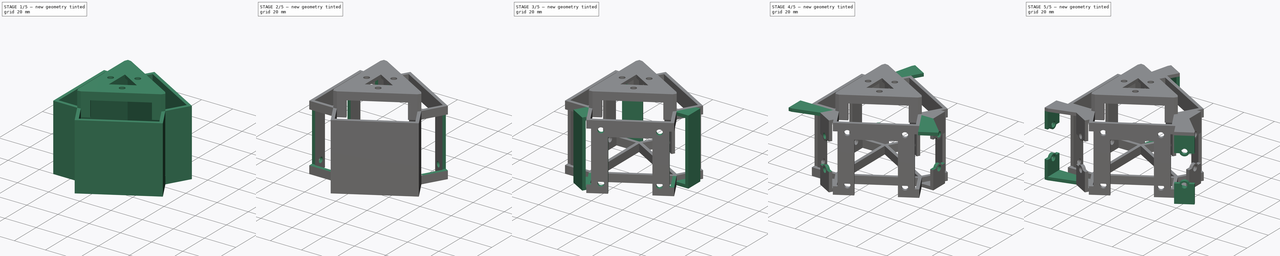
[diagram: build sequence overview — one tinted view per stage of 5, left to right]
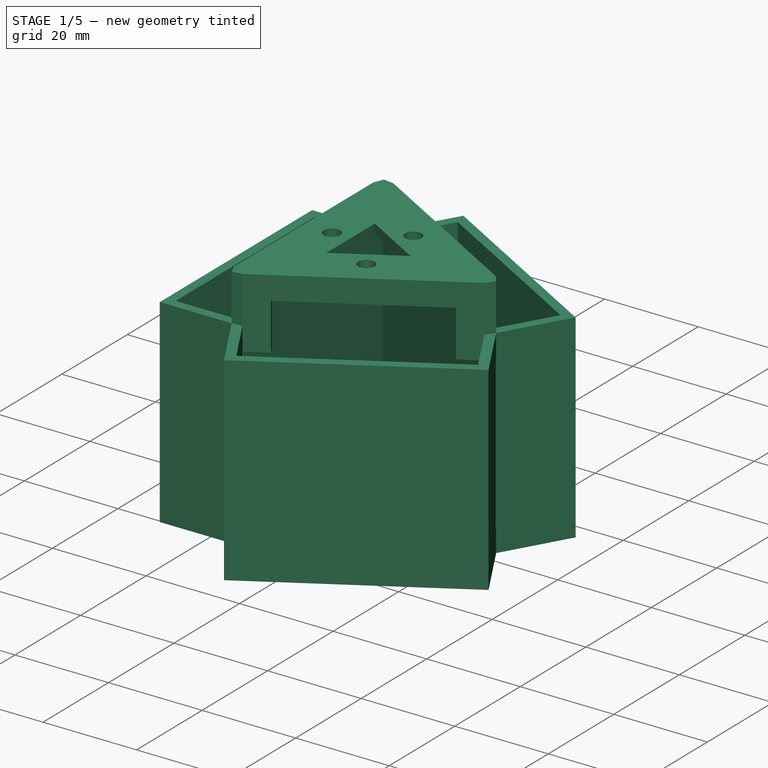
[diagram: stage 1 of 5 — iso view after this stage's code; geometry added in this stage tinted green]
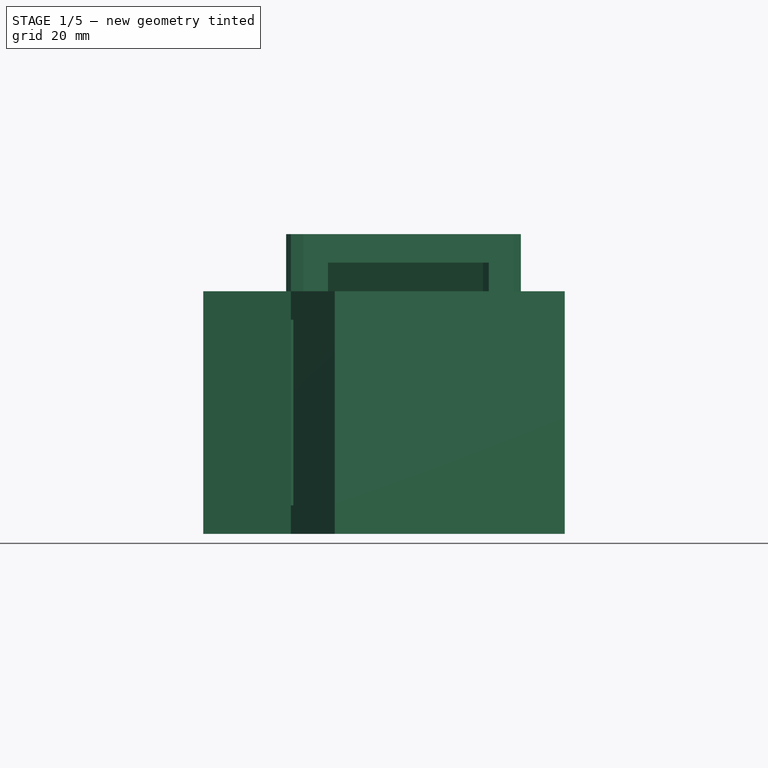
[diagram: stage 1 of 5 — front view after this stage's code; geometry added in this stage tinted green]
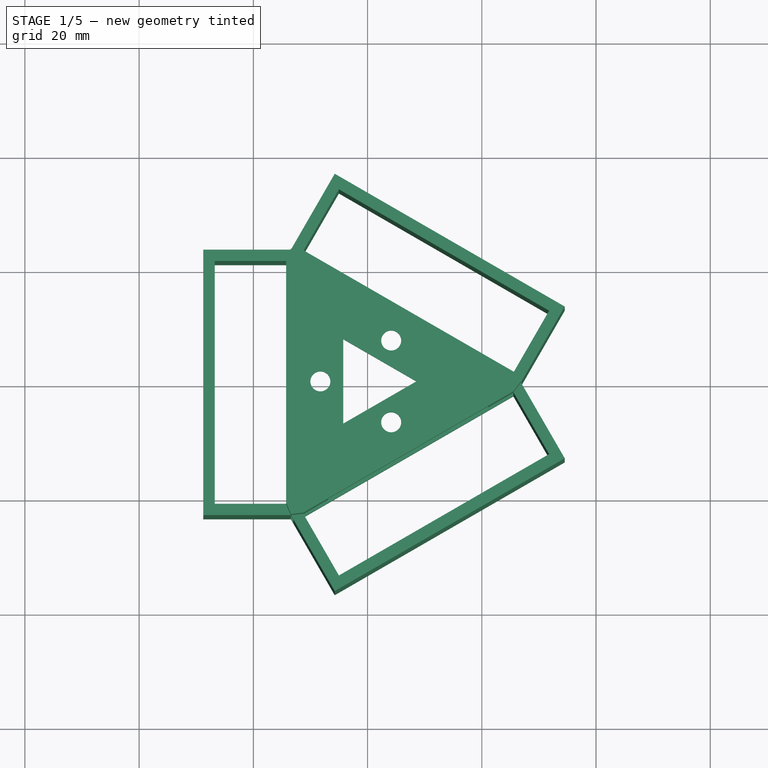
[diagram: stage 1 of 5 — top view after this stage's code; geometry added in this stage tinted green]
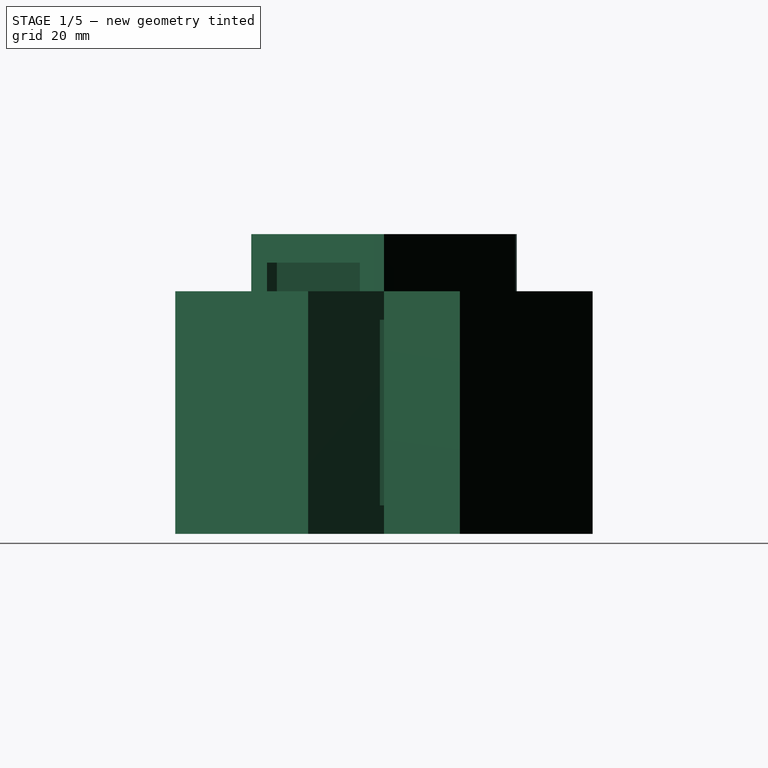
[diagram: stage 1 of 5 — right view after this stage's code; geometry added in this stage tinted green]
FCSTD DOCUMENT  (FreeCAD 0.20R)
Label: core1_motor_sensor_5
License: All rights reserved
LicenseURL: http://en.wikipedia.org/wiki/All_rights_reserved
objects: Sketcher::SketchObject×20, PartDesign::Pad×11, PartDesign::Pocket×9, PartDesign::Body×1
note: 61 computed .brp shape members not serialized (recipe doc carries the construction recipe); baked Part::Feature solids carry a one-line shape summary decoded from their .brp

FEATURE [Sketcher::SketchObject] Sketch
  FullyConstrained = true
  MapMode = 5
  Support = -> [XY_Plane]
  sketch-geometry (30):
    g0: LineSegment StartX=24.5374 StartY=0 StartZ=0 EndX=-12.2687 EndY=21.25 EndZ=0
    g1: LineSegment StartX=-12.2687 StartY=21.25 StartZ=0 EndX=-12.2687 EndY=-21.25 EndZ=0
    g2: LineSegment StartX=-12.2687 StartY=-21.25 StartZ=0 EndX=24.5374 EndY=0 EndZ=0
    g3: Circle CenterX=0 CenterY=0 CenterZ=0 NormalX=0 NormalY=0 NormalZ=1 AngleXU=0 Radius=24.5374
    g4: LineSegment StartX=-14.2687 StartY=21.25 StartZ=0 EndX=-14.2687 EndY=-21.25 EndZ=0
    g5: LineSegment StartX=-14.2687 StartY=-21.25 StartZ=0 EndX=-26.7687 EndY=-21.25 EndZ=0
    g6: LineSegment StartX=-26.7687 StartY=-21.25 StartZ=0 EndX=-26.7687 EndY=21.25 EndZ=0
    g7: LineSegment StartX=-26.7687 StartY=21.25 StartZ=0 EndX=-14.2687 EndY=21.25 EndZ=0
    g8: LineSegment StartX=-14.2687 StartY=21.25 StartZ=0 EndX=-12.2687 EndY=21.25 EndZ=0
    g9: LineSegment StartX=-12.2687 StartY=21.25 StartZ=0 EndX=-11.2687 EndY=22.9821 EndZ=0
    g10: LineSegment StartX=24.5374 StartY=0 StartZ=0 EndX=25.5374 EndY=1.73205 EndZ=0
    g11: LineSegment StartX=24.5374 StartY=0 StartZ=0 EndX=25.5374 EndY=-1.73205 EndZ=0
    g12: LineSegment StartX=-12.2687 StartY=-21.25 StartZ=0 EndX=-11.2687 EndY=-22.9821 EndZ=0
    g13: LineSegment StartX=-11.2687 StartY=22.9821 StartZ=0 EndX=25.5374 EndY=1.73205 EndZ=0
    g14: LineSegment StartX=25.5374 StartY=1.73205 StartZ=0 EndX=31.7874 EndY=12.5574 EndZ=0
    g15: LineSegment StartX=31.7874 StartY=12.5574 StartZ=0 EndX=-5.01869 EndY=33.8074 EndZ=0
    g16: LineSegment StartX=-5.01869 StartY=33.8074 StartZ=0 EndX=-11.2687 EndY=22.9821 EndZ=0
    g17: LineSegment StartX=-11.2687 StartY=-22.9821 StartZ=0 EndX=25.5374 EndY=-1.73205 EndZ=0
    g18: LineSegment StartX=25.5374 StartY=-1.73205 StartZ=0 EndX=31.7874 EndY=-12.5574 EndZ=0
    g19: LineSegment StartX=31.7874 StartY=-12.5574 StartZ=0 EndX=-5.01869 EndY=-33.8074 EndZ=0
    g20: LineSegment StartX=-5.01869 StartY=-33.8074 StartZ=0 EndX=-11.2687 EndY=-22.9821 EndZ=0
    g21: LineSegment StartX=-13.4234 StartY=23.25 StartZ=0 EndX=-5.75074 EndY=36.5394 EndZ=0
    g22: LineSegment StartX=-5.75074 StartY=36.5394 StartZ=0 EndX=34.5194 EndY=13.2894 EndZ=0
    g23: LineSegment StartX=34.5194 StartY=13.2894 StartZ=0 EndX=26.8468 EndY=0 EndZ=0
    g24: LineSegment StartX=26.8468 StartY=0 StartZ=0 EndX=34.5194 EndY=-13.2894 EndZ=0
    g25: LineSegment StartX=34.5194 StartY=-13.2894 StartZ=0 EndX=-5.75074 EndY=-36.5394 EndZ=0
    g26: LineSegment StartX=-5.75074 StartY=-36.5394 StartZ=0 EndX=-13.4234 EndY=-23.25 EndZ=0
    g27: LineSegment StartX=-13.4234 StartY=-23.25 StartZ=0 EndX=-28.7687 EndY=-23.25 EndZ=0
    g28: LineSegment StartX=-28.7687 StartY=-23.25 StartZ=0 EndX=-28.7687 EndY=23.25 EndZ=0
    g29: LineSegment StartX=-28.7687 StartY=23.25 StartZ=0 EndX=-13.4234 EndY=23.25 EndZ=0
  constraints (84):
    c: Coincident(g0,g1)
    c: Coincident(g1,g2)
    c: Coincident(g2,g0)
    c: Equal(g0,g1)
    c: Equal(g0,g2)
    c: PointOnObject(g0,g3)
    c: PointOnObject(g1,g3)
    c: PointOnObject(g2,g3)
    c: Coincident(g3,g-1)
    c: PointOnObject(g2,g-1)
    c: Distance(g1) = 42.5
    c: Vertical(g4)
    c: Coincident(g4,g5)
    c: Horizontal(g5)
    c: Coincident(g5,g6)
    c: Vertical(g6)
    c: Coincident(g6,g7)
    c: Coincident(g7,g4)
    c: Distance(g4,g0) = 2
    c: Parallel(g5,g7)
    c: Distance(g6) = 42.5
    c: Distance(g7) = 12.5
    c: Coincident(g8,g4)
    c: Coincident(g8,g0)
    c: Perpendicular(g4,g8)
    c: Coincident(g9,g0)
    c: Coincident(g10,g0)
    c: Coincident(g11,g0)
    c: Coincident(g12,g1)
    c: Perpendicular(g2,g12)
    c: Perpendicular(g2,g11)
    c: Perpendicular(g0,g9)
    c: Distance(g9) = 2
    c: Distance(g10) = 2
    c: Distance(g11) = 2
    c: Distance(g12) = 2
    c: Coincident(g9,g13)
    c: Coincident(g13,g10)
    c: Coincident(g13,g14)
    c: Coincident(g14,g15)
    c: Coincident(g15,g16)
    c: Coincident(g16,g13)
    c: Parallel(g13,g15)
    c: Parallel(g14,g16)
    c: Angle(g10,g0) = 1.5708
    c: Distance(g14) = 12.5
    c: Perpendicular(g14,g15)
    c: Coincident(g12,g17)
    c: Coincident(g17,g11)
    c: Coincident(g17,g18)
    c: Coincident(g18,g19)
    c: Coincident(g19,g20)
    c: Coincident(g20,g17)
    c: Parallel(g17,g19)
    c: Perpendicular(g18,g17)
    c: Parallel(g20,g18)
    c: Distance(g20) = 12.5
    c: Coincident(g21,g22)
    c: Coincident(g22,g23)
    c: PointOnObject(g23,g-1)
    c: Coincident(g23,g24)
    c: Coincident(g24,g25)
    c: Coincident(g25,g26)
    c: Coincident(g26,g27)
    c: Horizontal(g27)
    c: Coincident(g27,g28)
    c: Vertical(g28)
    c: Coincident(g28,g29)
    c: Coincident(g29,g21)
    c: Horizontal(g29)
    c: Parallel(g21,g16)
    c: Parallel(g22,g15)
    c: Parallel(g23,g14)
    c: Parallel(g24,g18)
    c: Parallel(g19,g25)
    c: Parallel(g20,g26)
    c: Distance(g5,g27) = 2
    c: Distance(g5,g28) = 2
    c: Distance(g6,g29) = 2
    c: Distance(g15,g21) = 2
    c: Distance(g15,g22) = 2
    c: Distance(g14,g23) = 2
    c: Distance(g18,g25) = 2
    c: Distance(g19,g26) = 2
FEATURE [PartDesign::Pad] Pad
  Direction = (0,0,1)
  Length = 42.5
  Length2 = 10
  Profile = -> Sketch
  ReferenceAxis = -> Sketch [N_Axis]
  Type = 0
FEATURE [Sketcher::SketchObject] Sketch001
  ExternalGeometry = -> [Pad]
  FullyConstrained = true
  MapMode = 5
  Placement = pos=(0,0,42.5) rot=(0,0,1;0rad)
  Support = -> [Pad]
  sketch-geometry (12):
    g0: LineSegment StartX=-13.4234 StartY=23.25 StartZ=0 EndX=-11.2687 EndY=22.9821 EndZ=0
    g1: LineSegment StartX=-11.2687 StartY=22.9821 StartZ=0 EndX=25.5374 EndY=1.73205 EndZ=0
    g2: LineSegment StartX=25.5374 StartY=1.73205 StartZ=0 EndX=26.8468 EndY=0 EndZ=0
    g3: LineSegment StartX=26.8468 StartY=0 StartZ=0 EndX=25.5374 EndY=-1.73205 EndZ=0
    g4: LineSegment StartX=25.5374 StartY=-1.73205 StartZ=0 EndX=-11.2687 EndY=-22.9821 EndZ=0
    g5: LineSegment StartX=-11.2687 StartY=-22.9821 StartZ=0 EndX=-13.4234 EndY=-23.25 EndZ=0
    g6: LineSegment StartX=-13.4234 StartY=-23.25 StartZ=0 EndX=-14.2687 EndY=-21.25 EndZ=0
    g7: LineSegment StartX=-14.2687 StartY=-21.25 StartZ=0 EndX=-14.2687 EndY=21.25 EndZ=0
    g8: LineSegment StartX=-14.2687 StartY=21.25 StartZ=0 EndX=-13.4234 EndY=23.25 EndZ=0
    g9: LineSegment StartX=-12.2687 StartY=21.25 StartZ=0 EndX=24.5374 EndY=-3.6e-15 EndZ=0
    g10: LineSegment StartX=24.5374 StartY=-3.6e-15 StartZ=0 EndX=-12.2687 EndY=-21.25 EndZ=0
    g11: LineSegment StartX=-12.2687 StartY=-21.25 StartZ=0 EndX=-12.2687 EndY=21.25 EndZ=0
  constraints (24):
    c: Coincident(g-3,g0)
    c: Coincident(g0,g-7)
    c: Coincident(g0,g1)
    c: Coincident(g1,g-7)
    c: Coincident(g1,g2)
    c: Coincident(g2,g-4)
    c: Coincident(g2,g3)
    c: Coincident(g3,g-8)
    c: Coincident(g3,g4)
    c: Coincident(g4,g-8)
    c: Coincident(g4,g5)
    c: Coincident(g5,g-5)
    c: Coincident(g5,g6)
    c: Coincident(g6,g-6)
    c: Coincident(g6,g7)
    c: Coincident(g7,g-6)
    c: Coincident(g7,g8)
    c: Coincident(g8,g0)
    c: Coincident(g-10,g9)
    c: Coincident(g9,g-9)
    c: Coincident(g9,g10)
    c: Coincident(g10,g-10)
    c: Coincident(g10,g11)
    c: Coincident(g11,g9)
FEATURE [PartDesign::Pad] Pad001
  BaseFeature = -> Pad
  Direction = (0,0,1)
  Length = 10
  Length2 = 10
  Profile = -> Sketch001
  ReferenceAxis = -> Sketch001 [N_Axis]
  Type = 0
FEATURE [Sketcher::SketchObject] Sketch002
  ExternalGeometry = -> [Pad001]
  FullyConstrained = true
  MapMode = 5
  Placement = pos=(0,0,52.5) rot=(0,0,1;0rad)
  Support = -> [Pad001]
  sketch-geometry (14):
    g0: LineSegment StartX=-12.2687 StartY=21.25 StartZ=0 EndX=24.5374 EndY=-3.6e-15 EndZ=0
    g1: LineSegment StartX=24.5374 StartY=-3.6e-15 StartZ=0 EndX=-12.2687 EndY=-21.25 EndZ=0
    g2: LineSegment StartX=-12.2687 StartY=-21.25 StartZ=0 EndX=-12.2687 EndY=21.25 EndZ=0
    g3: LineSegment StartX=8.53739 StartY=0 StartZ=0 EndX=-4.26869 EndY=7.39359 EndZ=0
    g4: LineSegment StartX=-4.26869 StartY=7.39359 StartZ=0 EndX=-4.26869 EndY=-7.39359 EndZ=0
    g5: LineSegment StartX=-4.26869 StartY=-7.39359 StartZ=0 EndX=8.53739 EndY=0 EndZ=0
    g6: Circle CenterX=0 CenterY=0 CenterZ=0 NormalX=0 NormalY=0 NormalZ=1 AngleXU=0 Radius=8.53739
    g7: LineSegment StartX=-8.26869 StartY=0 StartZ=0 EndX=4.13435 EndY=-7.1609 EndZ=0
    g8: LineSegment StartX=4.13435 StartY=-7.1609 StartZ=0 EndX=4.13435 EndY=7.1609 EndZ=0
    g9: LineSegment StartX=4.13435 StartY=7.1609 StartZ=0 EndX=-8.26869 EndY=0 EndZ=0
    g10: Circle CenterX=0 CenterY=0 CenterZ=0 NormalX=0 NormalY=0 NormalZ=1 AngleXU=0 Radius=8.26869
    g11: Circle CenterX=4.13435 CenterY=7.1609 CenterZ=0 NormalX=0 NormalY=0 NormalZ=1 AngleXU=0 Radius=1.75
    g12: Circle CenterX=4.13435 CenterY=-7.1609 CenterZ=0 NormalX=0 NormalY=0 NormalZ=1 AngleXU=0 Radius=1.75
    g13: Circle CenterX=-8.26869 CenterY=0 CenterZ=0 NormalX=0 NormalY=0 NormalZ=1 AngleXU=0 Radius=1.75
  constraints (34):
    c: Coincident(g-4,g0)
    c: Coincident(g0,g-3)
    c: Coincident(g0,g1)
    c: Coincident(g1,g-4)
    c: Coincident(g1,g2)
    c: Coincident(g2,g0)
    c: Coincident(g3,g4)
    c: Coincident(g4,g5)
    c: Coincident(g5,g3)
    c: Equal(g3,g4)
    c: Equal(g3,g5)
    c: PointOnObject(g3,g6)
    c: PointOnObject(g4,g6)
    c: PointOnObject(g5,g6)
    c: Coincident(g6,g-1)
    c: PointOnObject(g5,g-1)
    c: Distance(g3,g0) = 8
    c: Coincident(g7,g8)
    c: Coincident(g8,g9)
    c: Coincident(g9,g7)
    c: Equal(g7,g8)
    c: Equal(g7,g9)
    c: PointOnObject(g7,g10)
    c: PointOnObject(g8,g10)
    c: PointOnObject(g9,g10)
    c: Coincident(g10,g6)
    c: PointOnObject(g9,g-1)
    c: Distance(g8,g0) = 4
    c: Coincident(g11,g8)
    c: Coincident(g12,g7)
    c: Coincident(g13,g7)
    c: Diameter(g11) = 3.5
    c: Diameter(g12) = 3.5
    c: Diameter(g13) = 3.5
FEATURE [PartDesign::Pad] Pad002
  BaseFeature = -> Pad001
  Direction = (0,0,1)
  Length = 2
  Length2 = 10
  Profile = -> Sketch002
  ReferenceAxis = -> Sketch002 [N_Axis]
  Reversed = true
  Type = 0
FEATURE [Sketcher::SketchObject] Sketch003
  ExternalGeometry = -> [Pad002]
  FullyConstrained = true
  MapMode = 5
  Placement = pos=(7.13435,-12.3571,0) rot=(0.935113,0.250563,0.250563;1.63783rad)
  Support = -> [Pad002]
  sketch-geometry (8):
    g0: LineSegment StartX=-16.25 StartY=47.5 StartZ=0 EndX=16.25 EndY=47.5 EndZ=0
    g1: LineSegment StartX=16.25 StartY=47.5 StartZ=0 EndX=16.25 EndY=37.5 EndZ=0
    g2: LineSegment StartX=16.25 StartY=37.5 StartZ=0 EndX=23.25 EndY=37.5 EndZ=0
    g3: LineSegment StartX=23.25 StartY=37.5 StartZ=0 EndX=23.25 EndY=5 EndZ=0
    g4: LineSegment StartX=23.25 StartY=5 StartZ=0 EndX=-23.25 EndY=5 EndZ=0
    g5: LineSegment StartX=-23.25 StartY=5 StartZ=0 EndX=-23.25 EndY=37.5 EndZ=0
    g6: LineSegment StartX=-23.25 StartY=37.5 StartZ=0 EndX=-16.25 EndY=37.5 EndZ=0
    g7: LineSegment StartX=-16.25 StartY=37.5 StartZ=0 EndX=-16.25 EndY=47.5 EndZ=0
  constraints (24):
    c: Horizontal(g0)
    c: Coincident(g0,g1)
    c: Vertical(g1)
    c: Coincident(g1,g2)
    c: PointOnObject(g2,g-4)
    c: Horizontal(g2)
    c: Coincident(g2,g3)
    c: PointOnObject(g3,g-4)
    c: Coincident(g3,g4)
    c: PointOnObject(g4,g-3)
    c: Horizontal(g4)
    c: Coincident(g4,g5)
    c: PointOnObject(g5,g-3)
    c: Coincident(g5,g6)
    c: Horizontal(g6)
    c: Coincident(g6,g7)
    c: Coincident(g7,g0)
    c: Vertical(g7)
    c: Distance(g-5,g0) = 5
    c: Distance(g-3,g4) = 5
    c: Distance(g-5,g7) = 5
    c: Distance(g-6,g1) = 5
    c: Distance(g-5,g6) = 5
    c: Equal(g3,g5)
FEATURE [PartDesign::Pocket] Pocket
  BaseFeature = -> Pad002
  Direction = (-0.5,0.866025,1e-16)
  Length = 2
  Length2 = 5
  Profile = -> Sketch003
  ReferenceAxis = -> Sketch003 [N_Axis]
  Type = 0
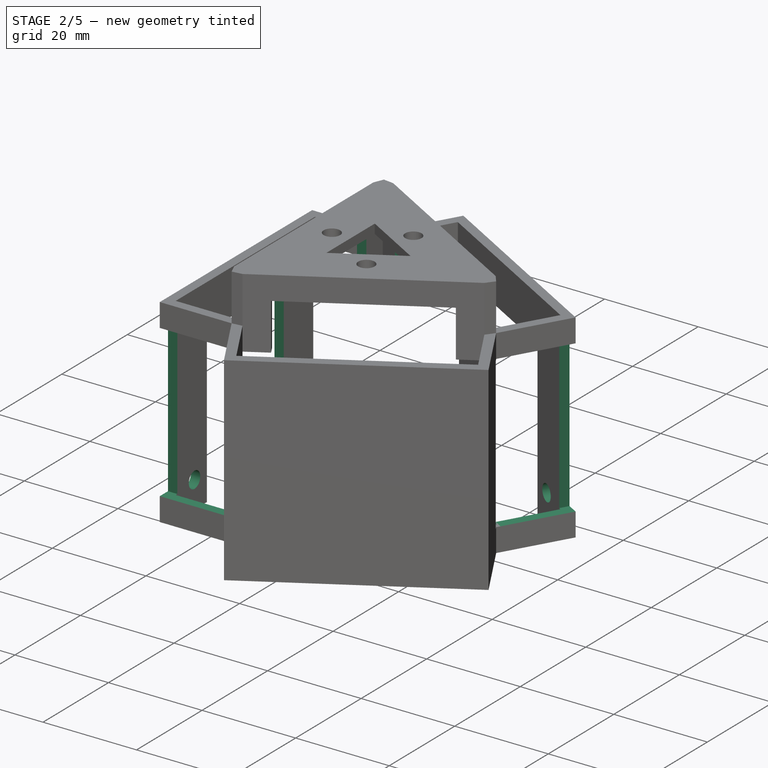
[diagram: stage 2 of 5 — iso view after this stage's code; geometry added in this stage tinted green]
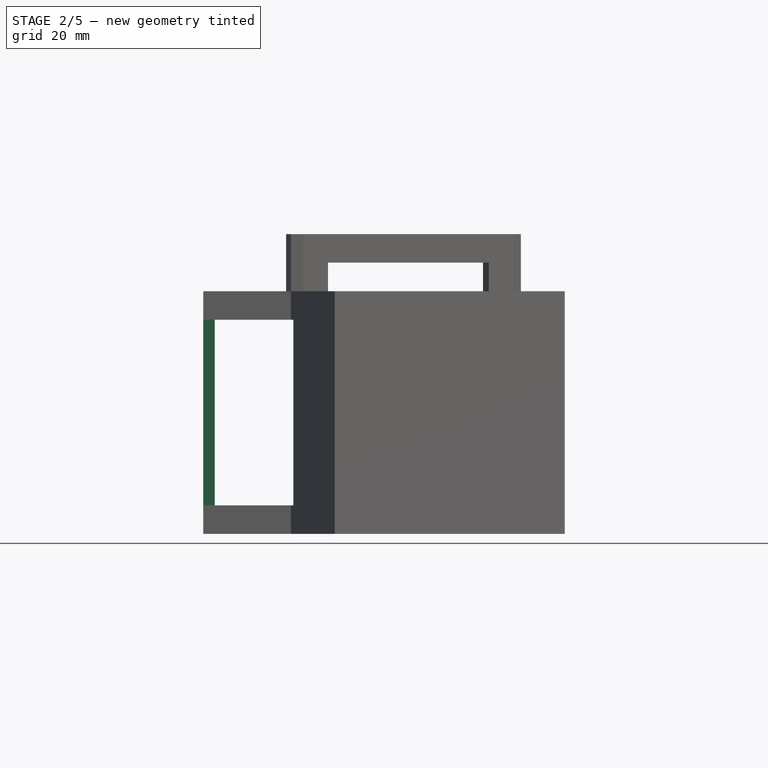
[diagram: stage 2 of 5 — front view after this stage's code; geometry added in this stage tinted green]
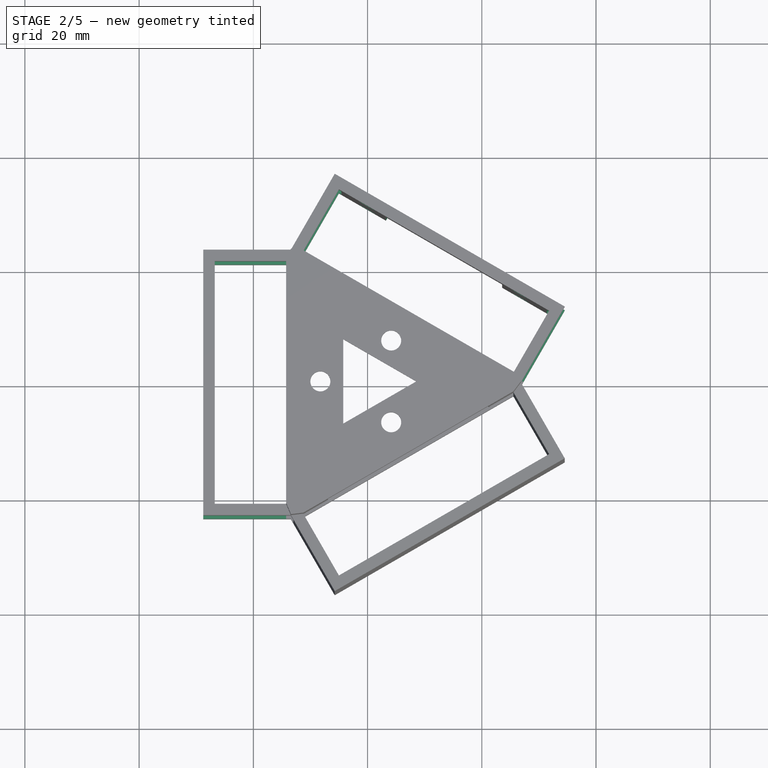
[diagram: stage 2 of 5 — top view after this stage's code; geometry added in this stage tinted green]
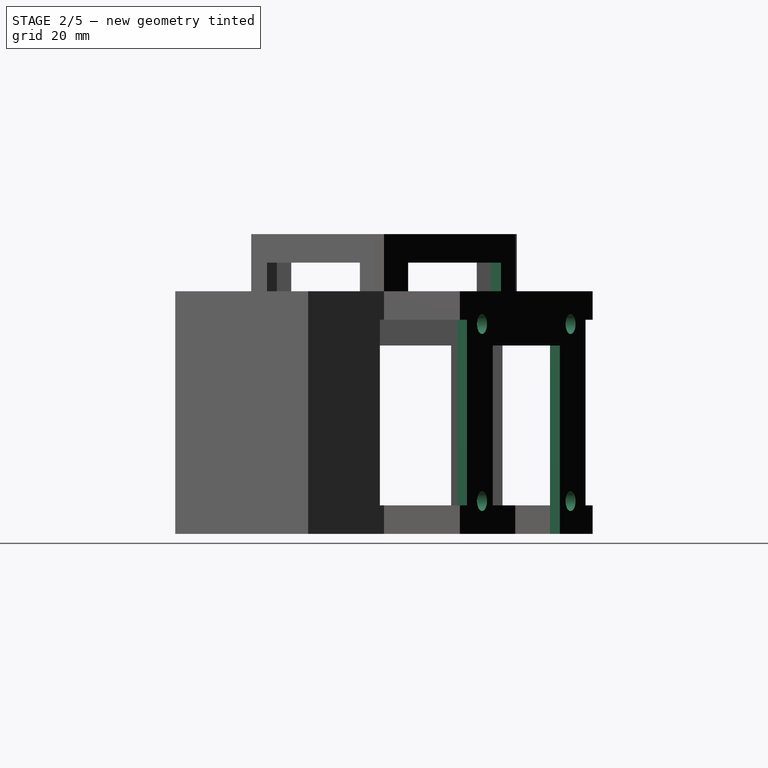
[diagram: stage 2 of 5 — right view after this stage's code; geometry added in this stage tinted green]
FEATURE [Sketcher::SketchObject] Sketch004
  ExternalGeometry = -> [Pocket]
  FullyConstrained = true
  MapMode = 5
  Placement = pos=(-14.2687,0,0) rot=(0.57735,-0.57735,-0.57735;2.0944rad)
  Support = -> [Pocket]
  sketch-geometry (8):
    g0: LineSegment StartX=-16.25 StartY=47.5 StartZ=0 EndX=16.25 EndY=47.5 EndZ=0
    g1: LineSegment StartX=16.25 StartY=47.5 StartZ=0 EndX=16.25 EndY=37.5 EndZ=0
    g2: LineSegment StartX=16.25 StartY=37.5 StartZ=0 EndX=23.25 EndY=37.5 EndZ=0
    g3: LineSegment StartX=23.25 StartY=37.5 StartZ=0 EndX=23.25 EndY=5 EndZ=0
    g4: LineSegment StartX=23.25 StartY=5 StartZ=0 EndX=-23.25 EndY=5 EndZ=0
    g5: LineSegment StartX=-23.25 StartY=5 StartZ=0 EndX=-23.25 EndY=37.5 EndZ=0
    g6: LineSegment StartX=-23.25 StartY=37.5 StartZ=0 EndX=-16.25 EndY=37.5 EndZ=0
    g7: LineSegment StartX=-16.25 StartY=37.5 StartZ=0 EndX=-16.25 EndY=47.5 EndZ=0
  constraints (22):
    c: Horizontal(g0)
    c: Coincident(g0,g1)
    c: Vertical(g1)
    c: Coincident(g1,g2)
    c: Coincident(g2,g-6)
    c: Coincident(g2,g3)
    c: Coincident(g3,g-7)
    c: Coincident(g3,g4)
    c: PointOnObject(g4,g-5)
    c: Horizontal(g4)
    c: Coincident(g4,g5)
    c: PointOnObject(g5,g-5)
    c: Coincident(g5,g6)
    c: Horizontal(g6)
    c: Coincident(g6,g7)
    c: Coincident(g7,g0)
    c: Vertical(g7)
    c: Horizontal(g2)
    c: Distance(g-3,g0) = 5
    c: Distance(g0,g-4) = 5
    c: Distance(g-3,g7) = 5
    c: Equal(g3,g5)
FEATURE [PartDesign::Pocket] Pocket001
  BaseFeature = -> Pocket
  Direction = (1,0,0)
  Length = 2
  Length2 = 5
  Profile = -> Sketch004
  ReferenceAxis = -> Sketch004 [N_Axis]
  Type = 0
FEATURE [Sketcher::SketchObject] Sketch005
  ExternalGeometry = -> [Pocket001]
  FullyConstrained = true
  MapMode = 5
  Placement = pos=(7.13435,12.3571,0) rot=(0.186157,0.694747,0.694747;2.77349rad)
  Support = -> [Pocket001]
  sketch-geometry (8):
    g0: LineSegment StartX=-16.25 StartY=47.5 StartZ=0 EndX=16.25 EndY=47.5 EndZ=0
    g1: LineSegment StartX=16.25 StartY=47.5 StartZ=0 EndX=16.25 EndY=37.5 EndZ=0
    g2: LineSegment StartX=16.25 StartY=37.5 StartZ=0 EndX=23.25 EndY=37.5 EndZ=0
    g3: LineSegment StartX=23.25 StartY=37.5 StartZ=0 EndX=23.25 EndY=5 EndZ=0
    g4: LineSegment StartX=23.25 StartY=5 StartZ=0 EndX=-23.25 EndY=5 EndZ=0
    g5: LineSegment StartX=-23.25 StartY=5 StartZ=0 EndX=-23.25 EndY=37.5 EndZ=0
    g6: LineSegment StartX=-23.25 StartY=37.5 StartZ=0 EndX=-16.25 EndY=37.5 EndZ=0
    g7: LineSegment StartX=-16.25 StartY=37.5 StartZ=0 EndX=-16.25 EndY=47.5 EndZ=0
  constraints (20):
    c: Horizontal(g0)
    c: Coincident(g0,g1)
    c: Vertical(g1)
    c: Coincident(g1,g2)
    c: Coincident(g2,g-7)
    c: Horizontal(g2)
    c: Coincident(g2,g3)
    c: Coincident(g3,g-8)
    c: Coincident(g3,g4)
    c: Coincident(g4,g-6)
    c: Coincident(g4,g5)
    c: Coincident(g5,g-5)
    c: Coincident(g5,g6)
    c: Horizontal(g6)
    c: Coincident(g6,g7)
    c: Coincident(g7,g0)
    c: Vertical(g7)
    c: Distance(g-3,g0) = 5
    c: Distance(g-3,g7) = 5
    c: Distance(g-4,g1) = 5
FEATURE [PartDesign::Pocket] Pocket002
  BaseFeature = -> Pocket001
  Direction = (-0.5,-0.866025,0)
  Length = 2
  Length2 = 5
  Profile = -> Sketch005
  ReferenceAxis = -> Sketch005 [N_Axis]
  Type = 0
FEATURE [Sketcher::SketchObject] Sketch006
  ExternalGeometry = -> [Pocket002]
  FullyConstrained = true
  MapMode = 5
  Placement = pos=(14.3843,24.9144,0) rot=(0.186157,0.694747,0.694747;2.77349rad)
  Support = -> [Pocket002]
  sketch-geometry (20):
    g0: LineSegment StartX=-15.5 StartY=36.75 StartZ=0 EndX=15.5 EndY=36.75 EndZ=0
    g1: LineSegment StartX=15.5 StartY=36.75 StartZ=0 EndX=15.5 EndY=5.75 EndZ=0
    g2: LineSegment StartX=15.5 StartY=5.75 StartZ=0 EndX=-15.5 EndY=5.75 EndZ=0
    g3: LineSegment StartX=-15.5 StartY=5.75 StartZ=0 EndX=-15.5 EndY=36.75 EndZ=0
    g4: Circle CenterX=-15.5 CenterY=36.75 CenterZ=0 NormalX=0 NormalY=0 NormalZ=1 AngleXU=0 Radius=1.75
    g5: Circle CenterX=15.5 CenterY=5.75 CenterZ=0 NormalX=0 NormalY=0 NormalZ=1 AngleXU=0 Radius=1.75
    g6: Circle CenterX=-15.5 CenterY=5.75 CenterZ=0 NormalX=0 NormalY=0 NormalZ=1 AngleXU=0 Radius=1.75
    g7: Circle CenterX=15.5 CenterY=36.75 CenterZ=0 NormalX=0 NormalY=0 NormalZ=1 AngleXU=0 Radius=1.75
    g8: LineSegment StartX=-11.75 StartY=33 StartZ=0 EndX=11.75 EndY=33 EndZ=0
    g9: LineSegment StartX=11.75 StartY=33 StartZ=0 EndX=11.75 EndY=0 EndZ=0
    g10: LineSegment StartX=11.75 StartY=0 StartZ=0 EndX=-11.75 EndY=0 EndZ=0
    g11: LineSegment StartX=-11.75 StartY=0 StartZ=0 EndX=-11.75 EndY=33 EndZ=0
    g12: LineSegment StartX=-23.9821 StartY=37.5 StartZ=0 EndX=-20.75 EndY=37.5 EndZ=0
    g13: LineSegment StartX=-20.75 StartY=37.5 StartZ=0 EndX=-20.75 EndY=5 EndZ=0
    g14: LineSegment StartX=-20.75 StartY=5 StartZ=0 EndX=-23.9821 EndY=5 EndZ=0
    g15: LineSegment StartX=-23.9821 StartY=5 StartZ=0 EndX=-23.9821 EndY=37.5 EndZ=0
    g16: LineSegment StartX=23.9821 StartY=37.5 StartZ=0 EndX=20.75 EndY=37.5 EndZ=0
    g17: LineSegment StartX=20.75 StartY=37.5 StartZ=0 EndX=20.75 EndY=5 EndZ=0
    g18: LineSegment StartX=20.75 StartY=5 StartZ=0 EndX=23.9821 EndY=5 EndZ=0
    g19: LineSegment StartX=23.9821 StartY=5 StartZ=0 EndX=23.9821 EndY=37.5 EndZ=0
  constraints (54):
    c: Coincident(g0,g1)
    c: Coincident(g1,g2)
    c: Coincident(g2,g3)
    c: Coincident(g3,g0)
    c: Horizontal(g0)
    c: Horizontal(g2)
    c: Vertical(g1)
    c: Vertical(g3)
    c: Distance(g0) = 31
    c: Distance(g3) = 31
    c: Distance(g-3,g3) = 5.75
    c: Distance(g-3,g0) = 5.75
    c: Coincident(g4,g0)
    c: Coincident(g5,g1)
    c: Coincident(g6,g2)
    c: Diameter(g6) = 3.5
    c: Diameter(g5) = 3.5
    c: Diameter(g4) = 3.5
    c: Coincident(g7,g0)
    c: Diameter(g7) = 3.5
    c: Coincident(g8,g9)
    c: Coincident(g9,g10)
    c: Coincident(g10,g11)
    c: Coincident(g11,g8)
    c: Horizontal(g8)
    c: Horizontal(g10)
    c: Vertical(g9)
    c: Vertical(g11)
    c: PointOnObject(g9,g-1)
    c: Distance(g8,g0) = 3.75
    c: Distance(g8,g3) = 3.75
    c: Distance(g8,g1) = 3.75
    c: Coincident(g12,g13)
    c: Coincident(g13,g14)
    c: Coincident(g14,g15)
    c: Coincident(g15,g12)
    c: Horizontal(g12)
    c: Horizontal(g14)
    c: Vertical(g13)
    c: Vertical(g15)
    c: Coincident(g12,g-7)
    c: Coincident(g16,g17)
    c: Coincident(g17,g18)
    c: Coincident(g18,g19)
    c: Coincident(g19,g16)
    c: Horizontal(g16)
    c: Horizontal(g18)
    c: Vertical(g17)
    c: Vertical(g19)
    c: Coincident(g16,g-8)
    c: Equal(g-7,g13)
    c: Equal(g-8,g17)
    c: Distance(g-3,g13) = 0.5
    c: Distance(g-4,g17) = 0.5
FEATURE [PartDesign::Pocket] Pocket003
  BaseFeature = -> Pocket002
  Direction = (-0.5,-0.866025,0)
  Length = 14.5
  Length2 = 5
  Profile = -> Sketch006
  ReferenceAxis = -> Sketch006 [N_Axis]
  Type = 0
FEATURE [Sketcher::SketchObject] Sketch007
  ExternalGeometry = -> [Pocket003]
  FullyConstrained = true
  MapMode = 5
  Placement = pos=(-28.7687,0,0) rot=(0.57735,-0.57735,-0.57735;2.0944rad)
  Support = -> [Pocket003]
  sketch-geometry (20):
    g0: LineSegment StartX=-15.5 StartY=36.75 StartZ=0 EndX=15.5 EndY=36.75 EndZ=0
    g1: LineSegment StartX=15.5 StartY=36.75 StartZ=0 EndX=15.5 EndY=5.75 EndZ=0
    g2: LineSegment StartX=15.5 StartY=5.75 StartZ=0 EndX=-15.5 EndY=5.75 EndZ=0
    g3: LineSegment StartX=-15.5 StartY=5.75 StartZ=0 EndX=-15.5 EndY=36.75 EndZ=0
    g4: Circle CenterX=-15.5 CenterY=36.75 CenterZ=0 NormalX=0 NormalY=0 NormalZ=1 AngleXU=0 Radius=1.75
    g5: Circle CenterX=15.5 CenterY=36.75 CenterZ=0 NormalX=0 NormalY=0 NormalZ=1 AngleXU=0 Radius=1.75
    g6: Circle CenterX=15.5 CenterY=5.75 CenterZ=0 NormalX=0 NormalY=0 NormalZ=1 AngleXU=0 Radius=1.75
    g7: Circle CenterX=-15.5 CenterY=5.75 CenterZ=0 NormalX=0 NormalY=0 NormalZ=1 AngleXU=0 Radius=1.75
    g8: LineSegment StartX=-11.75 StartY=33 StartZ=0 EndX=11.75 EndY=33 EndZ=0
    g9: LineSegment StartX=11.75 StartY=33 StartZ=0 EndX=11.75 EndY=0 EndZ=0
    g10: LineSegment StartX=11.75 StartY=0 StartZ=0 EndX=-11.75 EndY=0 EndZ=0
    g11: LineSegment StartX=-11.75 StartY=0 StartZ=0 EndX=-11.75 EndY=33 EndZ=0
    g12: LineSegment StartX=-23.9821 StartY=37.5 StartZ=0 EndX=-20.75 EndY=37.5 EndZ=0
    g13: LineSegment StartX=-20.75 StartY=37.5 StartZ=0 EndX=-20.75 EndY=5 EndZ=0
    g14: LineSegment StartX=-20.75 StartY=5 StartZ=0 EndX=-23.9821 EndY=5 EndZ=0
    g15: LineSegment StartX=-23.9821 StartY=5 StartZ=0 EndX=-23.9821 EndY=37.5 EndZ=0
    g16: LineSegment StartX=23.9821 StartY=37.5 StartZ=0 EndX=20.75 EndY=37.5 EndZ=0
    g17: LineSegment StartX=20.75 StartY=37.5 StartZ=0 EndX=20.75 EndY=5 EndZ=0
    g18: LineSegment StartX=20.75 StartY=5 StartZ=0 EndX=23.9821 EndY=5 EndZ=0
    g19: LineSegment StartX=23.9821 StartY=5 StartZ=0 EndX=23.9821 EndY=37.5 EndZ=0
  constraints (54):
    c: Coincident(g0,g1)
    c: Coincident(g1,g2)
    c: Coincident(g2,g3)
    c: Coincident(g3,g0)
    c: Horizontal(g0)
    c: Horizontal(g2)
    c: Vertical(g1)
    c: Vertical(g3)
    c: Distance(g0) = 31
    c: Distance(g3) = 31
    c: Distance(g-3,g0) = 5.75
    c: Distance(g-3,g3) = 5.75
    c: Coincident(g4,g0)
    c: Coincident(g5,g0)
    c: Coincident(g6,g1)
    c: Coincident(g7,g2)
    c: Diameter(g4) = 3.5
    c: Diameter(g5) = 3.5
    c: Diameter(g6) = 3.5
    c: Diameter(g7) = 3.5
    c: Coincident(g8,g9)
    c: Coincident(g9,g10)
    c: Coincident(g10,g11)
    c: Coincident(g11,g8)
    c: Horizontal(g8)
    c: Horizontal(g10)
    c: Vertical(g9)
    c: Vertical(g11)
    c: PointOnObject(g9,g-1)
    c: Distance(g8,g0) = 3.75
    c: Distance(g8,g3) = 3.75
    c: Distance(g8,g1) = 3.75
    c: Coincident(g12,g13)
    c: Coincident(g13,g14)
    c: Coincident(g14,g15)
    c: Coincident(g15,g12)
    c: Horizontal(g12)
    c: Horizontal(g14)
    c: Vertical(g13)
    c: Vertical(g15)
    c: Coincident(g12,g-8)
    c: Coincident(g16,g17)
    c: Coincident(g17,g18)
    c: Coincident(g18,g19)
    c: Coincident(g19,g16)
    c: Horizontal(g16)
    c: Horizontal(g18)
    c: Vertical(g17)
    c: Vertical(g19)
    c: Coincident(g16,g-5)
    c: Equal(g-5,g17)
    c: Equal(g19,g15)
    c: Distance(g-3,g13) = 0.5
    c: Distance(g-4,g17) = 0.5
FEATURE [PartDesign::Pocket] Pocket004
  BaseFeature = -> Pocket003
  Direction = (1,0,0)
  Length = 14.5
  Length2 = 5
  Profile = -> Sketch007
  ReferenceAxis = -> Sketch007 [N_Axis]
  Type = 0
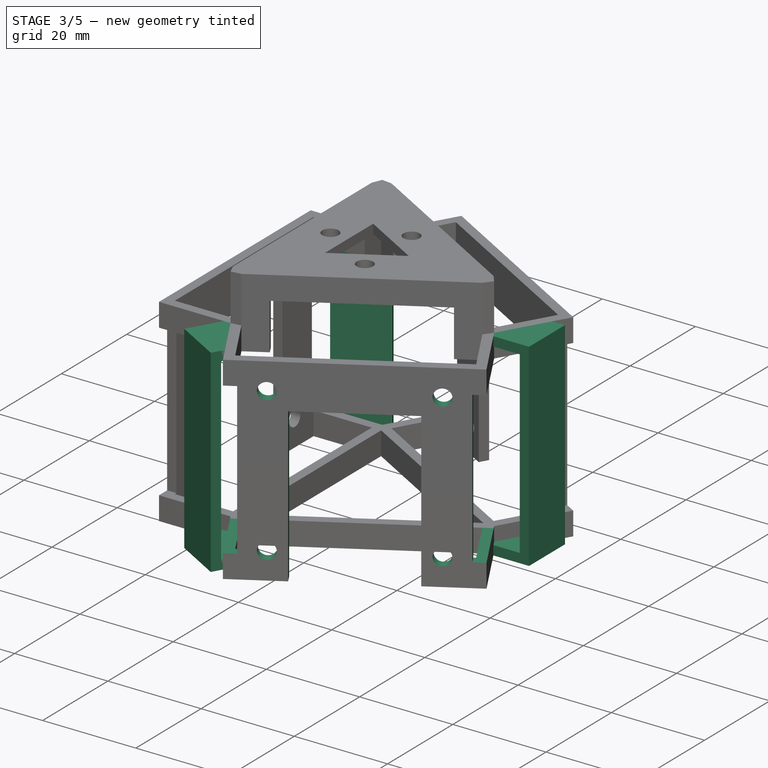
[diagram: stage 3 of 5 — iso view after this stage's code; geometry added in this stage tinted green]
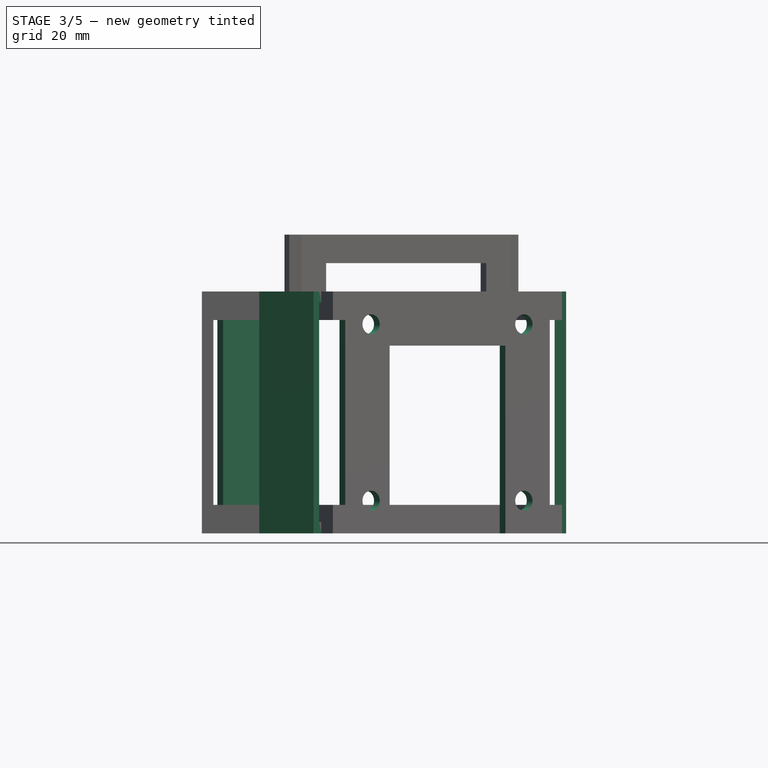
[diagram: stage 3 of 5 — front view after this stage's code; geometry added in this stage tinted green]
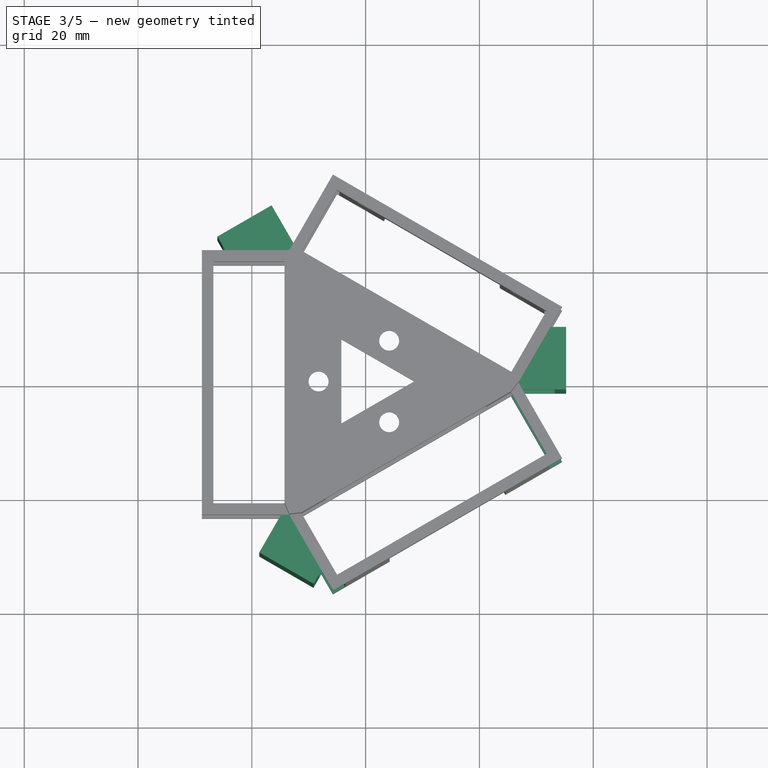
[diagram: stage 3 of 5 — top view after this stage's code; geometry added in this stage tinted green]
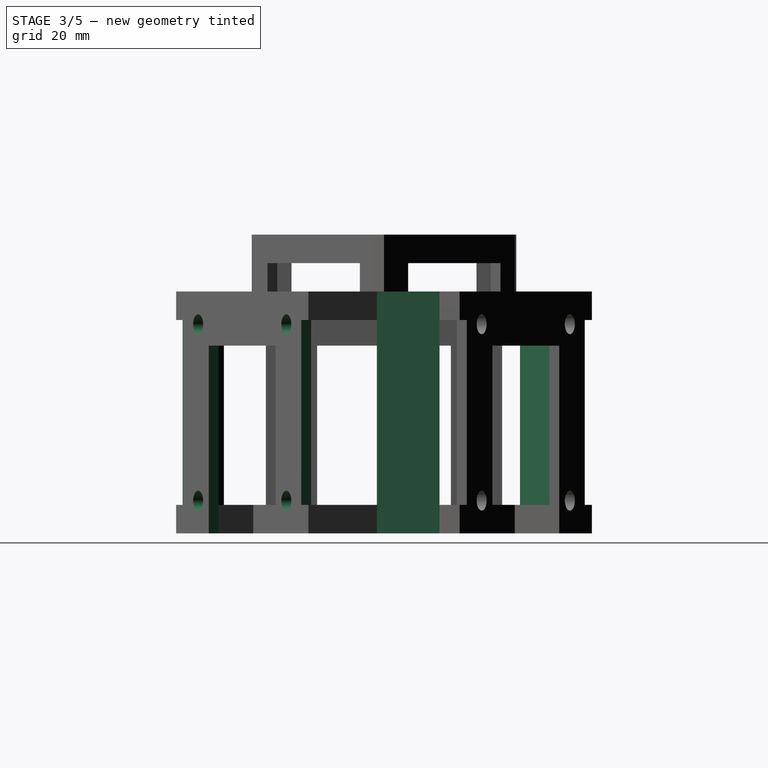
[diagram: stage 3 of 5 — right view after this stage's code; geometry added in this stage tinted green]
FEATURE [Sketcher::SketchObject] Sketch008
  ExternalGeometry = -> [Pocket004]
  FullyConstrained = true
  MapMode = 5
  Placement = pos=(14.3843,-24.9144,0) rot=(0.935113,0.250563,0.250563;1.63783rad)
  Support = -> [Pocket004]
  sketch-geometry (20):
    g0: LineSegment StartX=-15.5 StartY=36.75 StartZ=0 EndX=15.5 EndY=36.75 EndZ=0
    g1: LineSegment StartX=15.5 StartY=36.75 StartZ=0 EndX=15.5 EndY=5.75 EndZ=0
    g2: LineSegment StartX=15.5 StartY=5.75 StartZ=0 EndX=-15.5 EndY=5.75 EndZ=0
    g3: LineSegment StartX=-15.5 StartY=5.75 StartZ=0 EndX=-15.5 EndY=36.75 EndZ=0
    g4: Circle CenterX=-15.5 CenterY=36.75 CenterZ=0 NormalX=0 NormalY=0 NormalZ=1 AngleXU=0 Radius=1.75
    g5: Circle CenterX=15.5 CenterY=36.75 CenterZ=0 NormalX=0 NormalY=0 NormalZ=1 AngleXU=0 Radius=1.75
    g6: Circle CenterX=15.5 CenterY=5.75 CenterZ=0 NormalX=0 NormalY=0 NormalZ=1 AngleXU=0 Radius=1.75
    g7: Circle CenterX=-15.5 CenterY=5.75 CenterZ=0 NormalX=0 NormalY=0 NormalZ=1 AngleXU=0 Radius=1.75
    g8: LineSegment StartX=-23.9821 StartY=37.5 StartZ=0 EndX=-20.75 EndY=37.5 EndZ=0
    g9: LineSegment StartX=-20.75 StartY=37.5 StartZ=0 EndX=-20.75 EndY=5 EndZ=0
    g10: LineSegment StartX=-20.75 StartY=5 StartZ=0 EndX=-23.9821 EndY=5 EndZ=0
    g11: LineSegment StartX=-23.9821 StartY=5 StartZ=0 EndX=-23.9821 EndY=37.5 EndZ=0
    g12: LineSegment StartX=23.9821 StartY=37.5 StartZ=0 EndX=20.75 EndY=37.5 EndZ=0
    g13: LineSegment StartX=20.75 StartY=37.5 StartZ=0 EndX=20.75 EndY=5 EndZ=0
    g14: LineSegment StartX=20.75 StartY=5 StartZ=0 EndX=23.9821 EndY=5 EndZ=0
    g15: LineSegment StartX=23.9821 StartY=5 StartZ=0 EndX=23.9821 EndY=37.5 EndZ=0
    g16: LineSegment StartX=-11.75 StartY=33 StartZ=0 EndX=11.75 EndY=33 EndZ=0
    g17: LineSegment StartX=11.75 StartY=33 StartZ=0 EndX=11.75 EndY=0 EndZ=0
    g18: LineSegment StartX=11.75 StartY=0 StartZ=0 EndX=-11.75 EndY=0 EndZ=0
    g19: LineSegment StartX=-11.75 StartY=0 StartZ=0 EndX=-11.75 EndY=33 EndZ=0
  constraints (54):
    c: Coincident(g0,g1)
    c: Coincident(g1,g2)
    c: Coincident(g2,g3)
    c: Coincident(g3,g0)
    c: Horizontal(g0)
    c: Horizontal(g2)
    c: Vertical(g1)
    c: Vertical(g3)
    c: Distance(g0) = 31
    c: Distance(g3) = 31
    c: Distance(g-3,g0) = 5.75
    c: Distance(g-3,g3) = 5.75
    c: Coincident(g4,g0)
    c: Coincident(g5,g0)
    c: Coincident(g6,g1)
    c: Coincident(g7,g2)
    c: Diameter(g4) = 3.5
    c: Diameter(g5) = 3.5
    c: Diameter(g6) = 3.5
    c: Diameter(g7) = 3.5
    c: Coincident(g8,g9)
    c: Coincident(g9,g10)
    c: Coincident(g10,g11)
    c: Coincident(g11,g8)
    c: Horizontal(g8)
    c: Horizontal(g10)
    c: Vertical(g9)
    c: Vertical(g11)
    c: Coincident(g8,g-6)
    c: Coincident(g12,g13)
    c: Coincident(g13,g14)
    c: Coincident(g14,g15)
    c: Coincident(g15,g12)
    c: Horizontal(g12)
    c: Horizontal(g14)
    c: Vertical(g13)
    c: Vertical(g15)
    c: Coincident(g12,g-5)
    c: PointOnObject(g14,g-7)
    c: Equal(g11,g15)
    c: Distance(g-3,g9) = 0.5
    c: Distance(g-4,g13) = 0.5
    c: Coincident(g16,g17)
    c: Coincident(g17,g18)
    c: Coincident(g18,g19)
    c: Coincident(g19,g16)
    c: Horizontal(g16)
    c: Horizontal(g18)
    c: Vertical(g17)
    c: Vertical(g19)
    c: PointOnObject(g17,g-1)
    c: Distance(g16,g0) = 3.75
    c: Distance(g16,g3) = 3.75
    c: Distance(g16,g1) = 3.75
FEATURE [PartDesign::Pocket] Pocket005
  BaseFeature = -> Pocket004
  Direction = (-0.5,0.866025,-1e-16)
  Length = 14.5
  Length2 = 5
  Profile = -> Sketch008
  ReferenceAxis = -> Sketch008 [N_Axis]
  Type = 0
FEATURE [Sketcher::SketchObject] Sketch009
  ExternalGeometry = -> [Pocket005]
  FullyConstrained = true
  MapMode = 5
  Placement = pos=(0,0,42.5) rot=(0,0,1;0rad)
  Support = -> [Pocket005]
  sketch-geometry (32):
    g0: LineSegment StartX=33.2232 StartY=0 StartZ=0 EndX=-16.6116 EndY=28.7721 EndZ=0
    g1: LineSegment StartX=-16.6116 StartY=28.7721 StartZ=0 EndX=-16.6116 EndY=-28.7721 EndZ=0
    g2: LineSegment StartX=-16.6116 StartY=-28.7721 StartZ=0 EndX=33.2232 EndY=0 EndZ=0
    g3: Circle CenterX=0 CenterY=0 CenterZ=0 NormalX=0 NormalY=0 NormalZ=1 AngleXU=0 Radius=33.2232
    g4: LineSegment StartX=31.2232 StartY=9.75 StartZ=0 EndX=33.2232 EndY=9.75 EndZ=0
    g5: LineSegment StartX=33.2232 StartY=9.75 StartZ=0 EndX=33.2232 EndY=-1.25 EndZ=0
    g6: LineSegment StartX=33.2232 StartY=-1.25 StartZ=0 EndX=31.2232 EndY=-1.25 EndZ=0
    g7: LineSegment StartX=31.2232 StartY=-1.25 StartZ=0 EndX=31.2232 EndY=9.75 EndZ=0
    g8: GeomPoint X=33.2232 Y=4.25 Z=0
    g9: LineSegment StartX=28.7232 StartY=7.25 StartZ=0 EndX=33.2232 EndY=7.25 EndZ=0
    g10: LineSegment StartX=33.2232 StartY=7.25 StartZ=0 EndX=33.2232 EndY=1.25 EndZ=0
    g11: LineSegment StartX=33.2232 StartY=1.25 StartZ=0 EndX=28.7232 EndY=1.25 EndZ=0
    g12: LineSegment StartX=28.7232 StartY=1.25 StartZ=0 EndX=28.7232 EndY=7.25 EndZ=0
    g13: LineSegment StartX=32.476 StartY=9.75 StartZ=0 EndX=35.2232 EndY=9.75 EndZ=0
    g14: LineSegment StartX=35.2232 StartY=9.75 StartZ=0 EndX=35.2232 EndY=-1.25 EndZ=0
    g15: LineSegment StartX=35.2232 StartY=-1.25 StartZ=0 EndX=27.5685 EndY=-1.25 EndZ=0
    g16: LineSegment StartX=27.5685 StartY=-1.25 StartZ=0 EndX=26.8468 EndY=0 EndZ=0
    g17: LineSegment StartX=26.8468 StartY=0 StartZ=0 EndX=32.476 EndY=9.75 EndZ=0
    g18: LineSegment StartX=-17.6941 StartY=-28.1471 StartZ=0 EndX=-8.16784 EndY=-33.6471 EndZ=0
    g19: LineSegment StartX=-13.4234 StartY=-23.25 StartZ=0 EndX=-16.6116 EndY=-28.7721 EndZ=0
    g20: LineSegment StartX=-7.79423 StartY=-33 StartZ=0 EndX=-9.16784 EndY=-35.3792 EndZ=0
    g21: LineSegment StartX=-9.16784 StartY=-35.3792 StartZ=0 EndX=-18.6941 EndY=-29.8792 EndZ=0
    g22: LineSegment StartX=-18.6941 StartY=-29.8792 StartZ=0 EndX=-14.8668 EndY=-23.25 EndZ=0
    g23: LineSegment StartX=-14.8668 StartY=-23.25 StartZ=0 EndX=-13.4234 EndY=-23.25 EndZ=0
    g24: LineSegment StartX=-13.4234 StartY=-23.25 StartZ=0 EndX=-7.79423 EndY=-33 EndZ=0
    g25: LineSegment StartX=-25.0553 StartY=23.8971 StartZ=0 EndX=-15.5291 EndY=29.3971 EndZ=0
    g26: LineSegment StartX=-16.6116 StartY=28.7721 StartZ=0 EndX=-13.4234 EndY=23.25 EndZ=0
    g27: LineSegment StartX=-24.6817 StartY=23.25 StartZ=0 EndX=-26.0553 EndY=25.6292 EndZ=0
    g28: LineSegment StartX=-26.0553 StartY=25.6292 StartZ=0 EndX=-16.5291 EndY=31.1292 EndZ=0
    g29: LineSegment StartX=-16.5291 StartY=31.1292 StartZ=0 EndX=-12.7017 EndY=24.5 EndZ=0
    g30: LineSegment StartX=-12.7017 StartY=24.5 StartZ=0 EndX=-13.4234 EndY=23.25 EndZ=0
    g31: LineSegment StartX=-13.4234 StartY=23.25 StartZ=0 EndX=-24.6817 EndY=23.25 EndZ=0
  constraints (91):
    c: Coincident(g0,g1)
    c: Coincident(g1,g2)
    c: Coincident(g2,g0)
    c: Equal(g0,g1)
    c: Equal(g0,g2)
    c: PointOnObject(g0,g3)
    c: PointOnObject(g1,g3)
    c: PointOnObject(g2,g3)
    c: Coincident(g3,g-1)
    c: PointOnObject(g2,g-1)
    c: Coincident(g4,g5)
    c: Coincident(g5,g6)
    c: Coincident(g6,g7)
    c: Coincident(g7,g4)
    c: Horizontal(g4)
    c: Horizontal(g6)
    c: Vertical(g5)
    c: Vertical(g7)
    c: PointOnObject(g0,g5)
    c: Distance(g0,g5) = 1.25
    c: Distance(g4) = 2
    c: Distance(g5) = 11
    c: PointOnObject(g8,g5)
    c: Distance(g8,g6) = 5.5
    c: Coincident(g9,g10)
    c: Coincident(g10,g11)
    c: Coincident(g11,g12)
    c: Coincident(g12,g9)
    c: Horizontal(g9)
    c: Horizontal(g11)
    c: Vertical(g10)
    c: Vertical(g12)
    c: PointOnObject(g9,g-4)
    c: PointOnObject(g10,g5)
    c: Distance(g8,g9) = 3
    c: Distance(g12) = 6
    c: Distance(g9) = 4.5
    c: PointOnObject(g13,g-3)
    c: Horizontal(g13)
    c: Coincident(g13,g14)
    c: Vertical(g14)
    c: Coincident(g14,g15)
    c: PointOnObject(g15,g-5)
    c: Horizontal(g15)
    c: Coincident(g15,g16)
    c: Coincident(g16,g-5)
    c: Coincident(g16,g17)
    c: Coincident(g17,g13)
    c: PointOnObject(g4,g13)
    c: PointOnObject(g5,g15)
    c: Distance(g13,g5) = 2
    c: PointOnObject(g1,g18)
    c: Tangent(g18,g3)
    c: Distance(g1,g18) = 1.25
    c: Distance(g18) = 11
    c: Coincident(g19,g-7)
    c: Coincident(g19,g1)
    c: PointOnObject(g20,g-7)
    c: Coincident(g20,g21)
    c: Coincident(g21,g22)
    c: PointOnObject(g22,g-6)
    c: Coincident(g22,g23)
    c: Coincident(g23,g19)
    c: Coincident(g23,g24)
    c: Coincident(g24,g20)
    c: Parallel(g19,g20)
    c: Parallel(g20,g22)
    c: PointOnObject(g18,g20)
    c: PointOnObject(g18,g22)
    c: Parallel(g18,g21)
    c: Distance(g20,g18) = 2
    c: PointOnObject(g0,g25)
    c: Tangent(g25,g3)
    c: Distance(g0,g25) = 1.25
    c: Distance(g25) = 11
    c: Coincident(g26,g0)
    c: Coincident(g26,g-9)
    c: PointOnObject(g27,g-9)
    c: Coincident(g27,g28)
    c: Coincident(g28,g29)
    c: PointOnObject(g29,g-8)
    c: Coincident(g29,g30)
    c: Coincident(g30,g26)
    c: Coincident(g30,g31)
    c: Coincident(g31,g27)
    c: Parallel(g29,g26)
    c: Parallel(g29,g27)
    c: Parallel(g25,g28)
    c: PointOnObject(g25,g29)
    c: PointOnObject(g25,g27)
    c: Distance(g27,g25) = 2
FEATURE [PartDesign::Pad] Pad003
  BaseFeature = -> Pocket005
  Direction = (0,0,1)
  Length = 2
  Length2 = 10
  Profile = -> Sketch009
  ReferenceAxis = -> Sketch009 [N_Axis]
  Reversed = true
  Type = 0
FEATURE [Sketcher::SketchObject] Sketch010
  ExternalGeometry = -> [Pad003]
  FullyConstrained = true
  MapMode = 5
  Placement = pos=(0,0,0) rot=(1,0,0;3.14159rad)
  Support = -> [Pad003]
  sketch-geometry (15):
    g0: LineSegment StartX=-9.16784 StartY=35.3792 StartZ=0 EndX=-7.79423 EndY=33 EndZ=0
    g1: LineSegment StartX=-7.79423 StartY=33 StartZ=0 EndX=-13.4234 EndY=23.25 EndZ=0
    g2: LineSegment StartX=-13.4234 StartY=23.25 StartZ=0 EndX=-14.8668 EndY=23.25 EndZ=0
    g3: LineSegment StartX=-14.8668 StartY=23.25 StartZ=0 EndX=-18.6941 EndY=29.8792 EndZ=0
    g4: LineSegment StartX=-18.6941 StartY=29.8792 StartZ=0 EndX=-9.16784 EndY=35.3792 EndZ=0
    g5: LineSegment StartX=35.2232 StartY=1.25 StartZ=0 EndX=35.2232 EndY=-9.75 EndZ=0
    g6: LineSegment StartX=35.2232 StartY=-9.75 StartZ=0 EndX=32.476 EndY=-9.75 EndZ=0
    g7: LineSegment StartX=32.476 StartY=-9.75 StartZ=0 EndX=26.8468 EndY=0 EndZ=0
    g8: LineSegment StartX=26.8468 StartY=0 StartZ=0 EndX=27.5685 EndY=1.25 EndZ=0
    g9: LineSegment StartX=27.5685 StartY=1.25 StartZ=0 EndX=35.2232 EndY=1.25 EndZ=0
    g10: LineSegment StartX=-13.4234 StartY=-23.25 StartZ=0 EndX=-12.7017 EndY=-24.5 EndZ=0
    g11: LineSegment StartX=-12.7017 StartY=-24.5 StartZ=0 EndX=-16.5291 EndY=-31.1292 EndZ=0
    g12: LineSegment StartX=-16.5291 StartY=-31.1292 StartZ=0 EndX=-26.0553 EndY=-25.6292 EndZ=0
    g13: LineSegment StartX=-26.0553 StartY=-25.6292 StartZ=0 EndX=-24.6817 EndY=-23.25 EndZ=0
    g14: LineSegment StartX=-24.6817 StartY=-23.25 StartZ=0 EndX=-13.4234 EndY=-23.25 EndZ=0
  constraints (30):
    c: Coincident(g-4,g0)
    c: Coincident(g0,g-3)
    c: Coincident(g0,g1)
    c: Coincident(g1,g-5)
    c: Coincident(g1,g2)
    c: Coincident(g2,g-6)
    c: Coincident(g2,g3)
    c: Coincident(g3,g-6)
    c: Coincident(g3,g4)
    c: Coincident(g4,g0)
    c: Coincident(g-9,g5)
    c: Coincident(g5,g-10)
    c: Coincident(g5,g6)
    c: Coincident(g6,g-10)
    c: Coincident(g6,g7)
    c: Coincident(g7,g-8)
    c: Coincident(g7,g8)
    c: Coincident(g8,g-7)
    c: Coincident(g8,g9)
    c: Coincident(g9,g5)
    c: Coincident(g-12,g10)
    c: Coincident(g10,g-11)
    c: Coincident(g10,g11)
    c: Coincident(g11,g-11)
    c: Coincident(g11,g12)
    c: Coincident(g12,g-13)
    c: Coincident(g12,g13)
    c: Coincident(g13,g-13)
    c: Coincident(g13,g14)
    c: Coincident(g14,g10)
FEATURE [PartDesign::Pad] Pad004
  BaseFeature = -> Pad003
  Direction = (0,0,-1)
  Length = 2
  Length2 = 10
  Profile = -> Sketch010
  ReferenceAxis = -> Sketch010 [N_Axis]
  Reversed = true
  Type = 0
FEATURE [Sketcher::SketchObject] Sketch011
  ExternalGeometry = -> [Pad004]
  FullyConstrained = true
  MapMode = 5
  Placement = pos=(0,0,42.5) rot=(0,0,1;0rad)
  Support = -> [Pad004]
  sketch-geometry (12):
    g0: LineSegment StartX=-26.0553 StartY=25.6292 StartZ=0 EndX=-16.5291 EndY=31.1292 EndZ=0
    g1: LineSegment StartX=-16.5291 StartY=31.1292 StartZ=0 EndX=-15.5291 EndY=29.3971 EndZ=0
    g2: LineSegment StartX=-15.5291 StartY=29.3971 StartZ=0 EndX=-25.0553 EndY=23.8971 EndZ=0
    g3: LineSegment StartX=-25.0553 StartY=23.8971 StartZ=0 EndX=-26.0553 EndY=25.6292 EndZ=0
    g4: LineSegment StartX=33.2232 StartY=9.75 StartZ=0 EndX=35.2232 EndY=9.75 EndZ=0
    g5: LineSegment StartX=35.2232 StartY=9.75 StartZ=0 EndX=35.2232 EndY=-1.25 EndZ=0
    g6: LineSegment StartX=35.2232 StartY=-1.25 StartZ=0 EndX=33.2232 EndY=-1.25 EndZ=0
    g7: LineSegment StartX=33.2232 StartY=-1.25 StartZ=0 EndX=33.2232 EndY=9.75 EndZ=0
    g8: LineSegment StartX=-9.16784 StartY=-35.3792 StartZ=0 EndX=-8.16784 EndY=-33.6471 EndZ=0
    g9: LineSegment StartX=-8.16784 StartY=-33.6471 StartZ=0 EndX=-17.6941 EndY=-28.1471 EndZ=0
    g10: LineSegment StartX=-17.6941 StartY=-28.1471 StartZ=0 EndX=-18.6941 EndY=-29.8792 EndZ=0
    g11: LineSegment StartX=-18.6941 StartY=-29.8792 StartZ=0 EndX=-9.16784 EndY=-35.3792 EndZ=0
  constraints (30):
    c: Coincident(g-4,g0)
    c: Coincident(g0,g-5)
    c: Coincident(g0,g1)
    c: PointOnObject(g1,g-5)
    c: Coincident(g1,g2)
    c: PointOnObject(g2,g-4)
    c: Coincident(g2,g3)
    c: Coincident(g3,g0)
    c: PointOnObject(g4,g-6)
    c: Coincident(g4,g-6)
    c: Coincident(g4,g5)
    c: Coincident(g5,g-7)
    c: Coincident(g5,g6)
    c: PointOnObject(g6,g-7)
    c: Coincident(g6,g7)
    c: Coincident(g7,g4)
    c: Coincident(g-9,g8)
    c: PointOnObject(g8,g-9)
    c: Coincident(g8,g9)
    c: PointOnObject(g9,g-8)
    c: Coincident(g9,g10)
    c: Coincident(g10,g-8)
    c: Coincident(g10,g11)
    c: Coincident(g11,g8)
    c: Equal(g10,g8)
    c: Equal(g4,g6)
    c: Equal(g1,g3)
    c: Equal(g1,g6)
    c: Equal(g1,g10)
    c: Distance(g1) = 2
FEATURE [PartDesign::Pad] Pad005
  BaseFeature = -> Pad004
  Direction = (0,0,1)
  Length = 42.5
  Length2 = 10
  Profile = -> Sketch011
  ReferenceAxis = -> Sketch011 [N_Axis]
  Reversed = true
  Type = 0
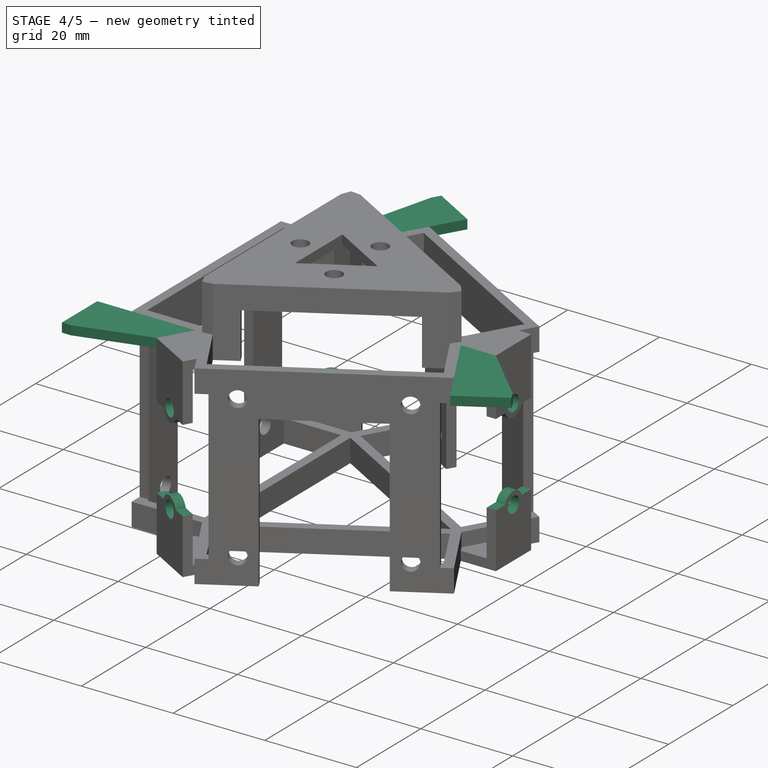
[diagram: stage 4 of 5 — iso view after this stage's code; geometry added in this stage tinted green]
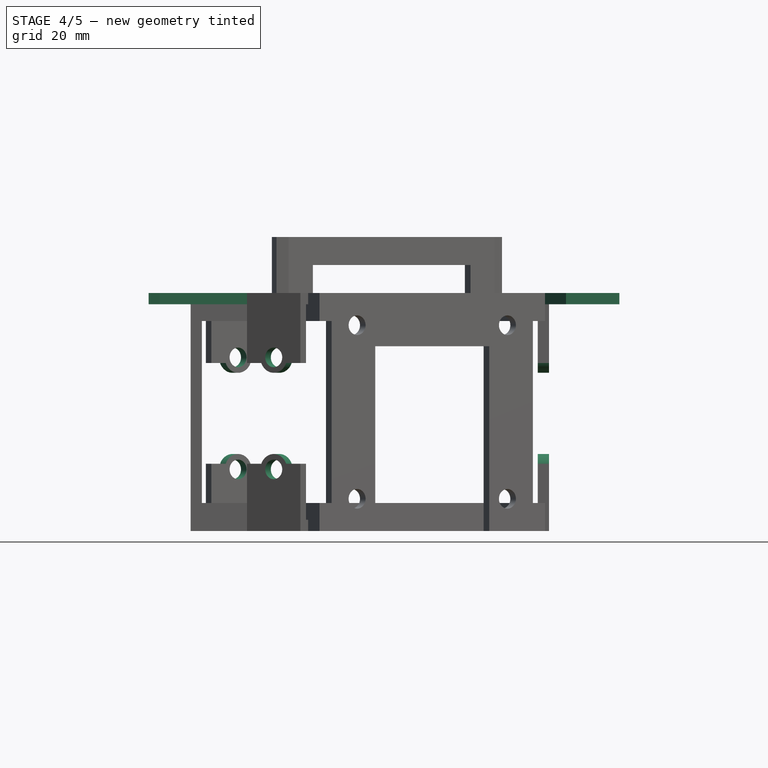
[diagram: stage 4 of 5 — front view after this stage's code; geometry added in this stage tinted green]
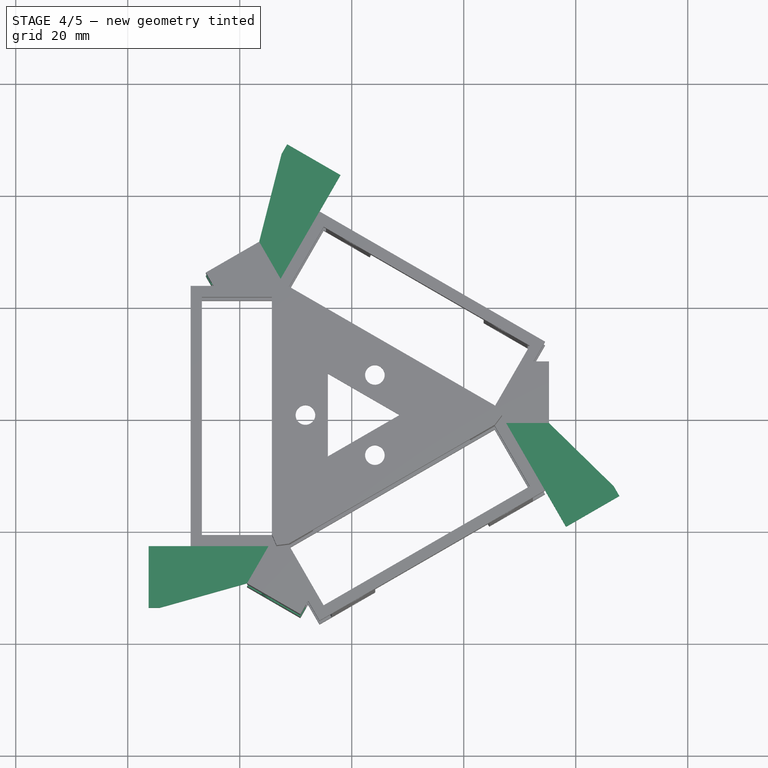
[diagram: stage 4 of 5 — top view after this stage's code; geometry added in this stage tinted green]
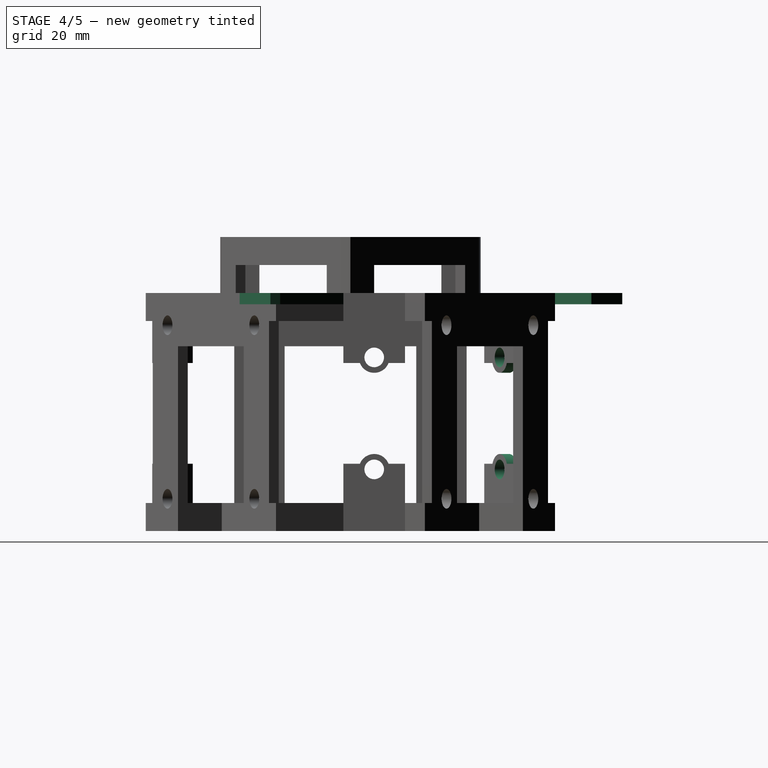
[diagram: stage 4 of 5 — right view after this stage's code; geometry added in this stage tinted green]
FEATURE [Sketcher::SketchObject] Sketch012
  ExternalGeometry = -> [Pad005]
  FullyConstrained = true
  MapMode = 5
  Placement = pos=(35.2232,0,0) rot=(0.57735,0.57735,0.57735;2.0944rad)
  Support = -> [Pad005]
  sketch-geometry (11):
    g0: LineSegment StartX=4.25 StartY=42.5 StartZ=0 EndX=4.25 EndY=0 EndZ=0
    g1: Circle CenterX=4.25 CenterY=31 CenterZ=0 NormalX=0 NormalY=0 NormalZ=1 AngleXU=0 Radius=1.75
    g2: ArcOfCircle CenterX=4.25 CenterY=31 CenterZ=0 NormalX=0 NormalY=0 NormalZ=1 AngleXU=0 Radius=2.75 StartAngle=3.51376 EndAngle=5.91102
    g3: Circle CenterX=4.25 CenterY=11 CenterZ=0 NormalX=0 NormalY=0 NormalZ=1 AngleXU=0 Radius=1.75
    g4: ArcOfCircle CenterX=4.25 CenterY=11 CenterZ=0 NormalX=0 NormalY=0 NormalZ=1 AngleXU=0 Radius=2.75 StartAngle=0.372169 EndAngle=2.76942
    g5: LineSegment StartX=-1.25 StartY=30 StartZ=0 EndX=1.68826 EndY=30 EndZ=0
    g6: LineSegment StartX=9.75 StartY=30 StartZ=0 EndX=9.75 EndY=12 EndZ=0
    g7: LineSegment StartX=9.75 StartY=12 StartZ=0 EndX=6.81174 EndY=12 EndZ=0
    g8: LineSegment StartX=-1.25 StartY=12 StartZ=0 EndX=-1.25 EndY=30 EndZ=0
    g9: LineSegment StartX=6.81174 StartY=30 StartZ=0 EndX=9.75 EndY=30 EndZ=0
    g10: LineSegment StartX=1.68826 StartY=12 StartZ=0 EndX=-1.25 EndY=12 EndZ=0
  constraints (36):
    c: PointOnObject(g0,g-3)
    c: PointOnObject(g0,g-1)
    c: Vertical(g0)
    c: Distance(g0,g-3) = 5.5
    c: PointOnObject(g1,g0)
    c: Coincident(g2,g1)
    c: PointOnObject(g3,g0)
    c: Coincident(g4,g3)
    c: Coincident(g9,g6)
    c: Coincident(g6,g7)
    c: Coincident(g10,g8)
    c: Coincident(g8,g5)
    c: Horizontal(g5)
    c: Horizontal(g7)
    c: Vertical(g6)
    c: Vertical(g8)
    c: PointOnObject(g5,g-4)
    c: PointOnObject(g6,g-5)
    c: Diameter(g1) = 3.5
    c: Diameter(g3) = 3.5
    c: Diameter(g2) = 5.5
    c: Diameter(g4) = 5.5
    c: Distance(g1,g-3) = 11.5
    c: Distance(g1,g3) = 20
    c: Distance(g1,g5) = 1
    c: Distance(g3,g7) = 1
    c: PointOnObject(g2,g5)
    c: Coincident(g5,g2)
    c: PointOnObject(g9,g2)
    c: PointOnObject(g4,g7)
    c: Coincident(g7,g4)
    c: PointOnObject(g10,g4)
    c: Equal(g7,g9)
    c: Equal(g5,g10)
    c: Distance(g6) = 18
    c: Distance(g8) = 18
FEATURE [PartDesign::Pocket] Pocket006
  BaseFeature = -> Pad005
  Direction = (-1,0,0)
  Length = 2
  Length2 = 5
  Profile = -> Sketch012
  ReferenceAxis = -> Sketch012 [N_Axis]
  Type = 0
FEATURE [Sketcher::SketchObject] Sketch013
  ExternalGeometry = -> [Pocket006]
  FullyConstrained = true
  MapMode = 5
  Placement = pos=(-17.6116,-30.5042,0) rot=(0.935113,-0.250563,-0.250563;1.63783rad)
  Support = -> [Pocket006]
  sketch-geometry (11):
    g0: LineSegment StartX=4.25 StartY=42.5 StartZ=0 EndX=4.25 EndY=0 EndZ=0
    g1: Circle CenterX=4.25 CenterY=31 CenterZ=0 NormalX=0 NormalY=0 NormalZ=1 AngleXU=0 Radius=1.75
    g2: ArcOfCircle CenterX=4.25 CenterY=31 CenterZ=0 NormalX=0 NormalY=0 NormalZ=1 AngleXU=0 Radius=2.75 StartAngle=3.51376 EndAngle=5.91102
    g3: Circle CenterX=4.25 CenterY=11 CenterZ=0 NormalX=0 NormalY=0 NormalZ=1 AngleXU=0 Radius=1.75
    g4: ArcOfCircle CenterX=4.25 CenterY=11 CenterZ=0 NormalX=0 NormalY=0 NormalZ=1 AngleXU=0 Radius=2.75 StartAngle=0.372169 EndAngle=2.76942
    g5: LineSegment StartX=-1.25 StartY=30 StartZ=0 EndX=1.68826 EndY=30 EndZ=0
    g6: LineSegment StartX=9.75 StartY=30 StartZ=0 EndX=9.75 EndY=12 EndZ=0
    g7: LineSegment StartX=9.75 StartY=12 StartZ=0 EndX=6.81174 EndY=12 EndZ=0
    g8: LineSegment StartX=-1.25 StartY=12 StartZ=0 EndX=-1.25 EndY=30 EndZ=0
    g9: LineSegment StartX=6.81174 StartY=30 StartZ=0 EndX=9.75 EndY=30 EndZ=0
    g10: LineSegment StartX=1.68826 StartY=12 StartZ=0 EndX=-1.25 EndY=12 EndZ=0
  constraints (34):
    c: PointOnObject(g0,g-3)
    c: PointOnObject(g0,g-1)
    c: Vertical(g0)
    c: Distance(g-3,g0) = 5.5
    c: PointOnObject(g1,g0)
    c: Coincident(g2,g1)
    c: PointOnObject(g3,g0)
    c: Coincident(g4,g3)
    c: Diameter(g1) = 3.5
    c: Diameter(g2) = 5.5
    c: Equal(g1,g3)
    c: Equal(g2,g4)
    c: Coincident(g9,g6)
    c: Coincident(g6,g7)
    c: Coincident(g10,g8)
    c: Coincident(g8,g5)
    c: Horizontal(g5)
    c: Horizontal(g7)
    c: Vertical(g6)
    c: Vertical(g8)
    c: PointOnObject(g5,g-5)
    c: PointOnObject(g6,g-4)
    c: Distance(g1,g-3) = 11.5
    c: Distance(g1,g3) = 20
    c: Distance(g1,g5) = 1
    c: Distance(g3,g7) = 1
    c: Coincident(g5,g2)
    c: Coincident(g2,g9)
    c: Coincident(g4,g10)
    c: Coincident(g4,g7)
    c: Equal(g7,g9)
    c: Equal(g5,g10)
    c: Distance(g6) = 18
    c: Distance(g8) = 18
FEATURE [PartDesign::Pocket] Pocket007
  BaseFeature = -> Pocket006
  Direction = (0.5,0.866025,3e-16)
  Length = 2
  Length2 = 5
  Profile = -> Sketch013
  ReferenceAxis = -> Sketch013 [N_Axis]
  Type = 0
FEATURE [Sketcher::SketchObject] Sketch014
  ExternalGeometry = -> [Pocket007]
  FullyConstrained = true
  MapMode = 5
  Placement = pos=(-17.6115,30.5042,0) rot=(-0.186156,0.694747,0.694747;3.50969rad)
  Support = -> [Pocket007]
  sketch-geometry (11):
    g0: LineSegment StartX=4.25008 StartY=42.5 StartZ=0 EndX=4.25008 EndY=0 EndZ=0
    g1: Circle CenterX=4.25008 CenterY=31 CenterZ=0 NormalX=0 NormalY=0 NormalZ=1 AngleXU=0 Radius=1.75
    g2: ArcOfCircle CenterX=4.25008 CenterY=31 CenterZ=0 NormalX=0 NormalY=0 NormalZ=1 AngleXU=0 Radius=2.75 StartAngle=3.51376 EndAngle=5.91102
    g3: Circle CenterX=4.25008 CenterY=11 CenterZ=0 NormalX=0 NormalY=0 NormalZ=1 AngleXU=0 Radius=1.75
    g4: ArcOfCircle CenterX=4.25008 CenterY=11 CenterZ=0 NormalX=0 NormalY=0 NormalZ=1 AngleXU=0 Radius=2.75 StartAngle=0.372169 EndAngle=2.76942
    g5: LineSegment StartX=-2.24992 StartY=30 StartZ=0 EndX=1.68834 EndY=30 EndZ=0
    g6: LineSegment StartX=10.7501 StartY=30 StartZ=0 EndX=10.7501 EndY=12 EndZ=0
    g7: LineSegment StartX=10.7501 StartY=12 StartZ=0 EndX=6.81181 EndY=12 EndZ=0
    g8: LineSegment StartX=-2.24992 StartY=12 StartZ=0 EndX=-2.24992 EndY=30 EndZ=0
    g9: LineSegment StartX=6.81181 StartY=30 StartZ=0 EndX=10.7501 EndY=30 EndZ=0
    g10: LineSegment StartX=1.68834 StartY=12 StartZ=0 EndX=-2.24992 EndY=12 EndZ=0
  constraints (36):
    c: PointOnObject(g0,g-3)
    c: PointOnObject(g0,g-4)
    c: Vertical(g0)
    c: Distance(g-3,g0) = 5.5
    c: PointOnObject(g1,g0)
    c: Coincident(g2,g1)
    c: PointOnObject(g3,g0)
    c: Coincident(g4,g3)
    c: Diameter(g1) = 3.5
    c: Diameter(g3) = 3.5
    c: Diameter(g2) = 5.5
    c: Diameter(g4) = 5.5
    c: Coincident(g9,g6)
    c: Coincident(g6,g7)
    c: Coincident(g10,g8)
    c: Coincident(g8,g5)
    c: Horizontal(g5)
    c: Horizontal(g7)
    c: Vertical(g6)
    c: Vertical(g8)
    c: Distance(g-3,g6) = 1
    c: Distance(g-3,g8) = 1
    c: Distance(g1,g5) = 1
    c: Distance(g3,g7) = 1
    c: Distance(g1,g-3) = 11.5
    c: Distance(g1,g3) = 20
    c: PointOnObject(g2,g5)
    c: Coincident(g5,g2)
    c: PointOnObject(g9,g2)
    c: PointOnObject(g4,g7)
    c: Coincident(g7,g4)
    c: PointOnObject(g10,g4)
    c: Equal(g7,g9)
    c: Equal(g5,g10)
    c: Distance(g8) = 18
    c: Distance(g6) = 18
FEATURE [PartDesign::Pocket] Pocket008
  BaseFeature = -> Pocket007
  Direction = (0.499998,-0.866026,-2e-16)
  Length = 2
  Length2 = 5
  Profile = -> Sketch014
  ReferenceAxis = -> Sketch014 [N_Axis]
  Type = 0
FEATURE [Sketcher::SketchObject] Sketch015
  ExternalGeometry = -> [Pocket008]
  FullyConstrained = true
  MapMode = 5
  Placement = pos=(0,0,42.5) rot=(0,0,1;0rad)
  Support = -> [Pocket008]
  sketch-geometry (15):
    g0: LineSegment StartX=-12.7017 StartY=24.5 StartZ=0 EndX=-2.00074 EndY=43.0346 EndZ=0
    g1: LineSegment StartX=-2.00074 StartY=43.0346 StartZ=0 EndX=-11.527 EndY=48.5346 EndZ=0
    g2: LineSegment StartX=-11.527 StartY=48.5346 StartZ=0 EndX=-12.527 EndY=46.8026 EndZ=0
    g3: LineSegment StartX=-12.527 StartY=46.8026 StartZ=0 EndX=-16.5291 EndY=31.1292 EndZ=0
    g4: LineSegment StartX=-16.5291 StartY=31.1292 StartZ=0 EndX=-12.7017 EndY=24.5 EndZ=0
    g5: LineSegment StartX=-14.8668 StartY=-23.25 StartZ=0 EndX=-36.2687 EndY=-23.25 EndZ=0
    g6: LineSegment StartX=-36.2687 StartY=-23.25 StartZ=0 EndX=-36.2687 EndY=-34.25 EndZ=0
    g7: LineSegment StartX=-36.2687 StartY=-34.25 StartZ=0 EndX=-34.2687 EndY=-34.25 EndZ=0
    g8: LineSegment StartX=-34.2687 StartY=-34.25 StartZ=0 EndX=-18.6941 EndY=-29.8792 EndZ=0
    g9: LineSegment StartX=-18.6941 StartY=-29.8792 StartZ=0 EndX=-14.8668 EndY=-23.25 EndZ=0
    g10: LineSegment StartX=27.5685 StartY=-1.25 StartZ=0 EndX=38.2694 EndY=-19.7846 EndZ=0
    g11: LineSegment StartX=38.2694 StartY=-19.7846 StartZ=0 EndX=47.7957 EndY=-14.2846 EndZ=0
    g12: LineSegment StartX=47.7957 StartY=-14.2846 StartZ=0 EndX=46.7957 EndY=-12.5526 EndZ=0
    g13: LineSegment StartX=46.7957 StartY=-12.5526 StartZ=0 EndX=35.2232 EndY=-1.25 EndZ=0
    g14: LineSegment StartX=35.2232 StartY=-1.25 StartZ=0 EndX=27.5685 EndY=-1.25 EndZ=0
  constraints (39):
    c: Coincident(g-3,g0)
    c: Coincident(g0,g1)
    c: Coincident(g1,g2)
    c: Coincident(g2,g3)
    c: Coincident(g3,g-4)
    c: Coincident(g3,g4)
    c: Coincident(g4,g0)
    c: PointOnObject(g-3,g0)
    c: Distance(g-3,g0) = 7.5
    c: Distance(g1) = 11
    c: Distance(g2) = 2
    c: Perpendicular(g1,g0)
    c: Perpendicular(g2,g1)
    c: Coincident(g-5,g5)
    c: Horizontal(g5)
    c: Coincident(g5,g6)
    c: Vertical(g6)
    c: Coincident(g6,g7)
    c: Horizontal(g7)
    c: Coincident(g7,g8)
    c: Coincident(g8,g-6)
    c: Coincident(g8,g9)
    c: Coincident(g9,g5)
    c: Distance(g-5,g5) = 7.5
    c: Distance(g6) = 11
    c: Distance(g7) = 2
    c: Coincident(g-7,g10)
    c: Coincident(g10,g11)
    c: Coincident(g11,g12)
    c: Coincident(g12,g13)
    c: Coincident(g13,g-8)
    c: Coincident(g13,g14)
    c: Coincident(g14,g10)
    c: PointOnObject(g-7,g10)
    c: Distance(g10,g-7) = 7.5
    c: Distance(g11) = 11
    c: Distance(g12) = 2
    c: Perpendicular(g11,g12)
    c: Perpendicular(g10,g11)
FEATURE [PartDesign::Pad] Pad006
  BaseFeature = -> Pocket008
  Direction = (0,0,1)
  Length = 2
  Length2 = 10
  Profile = -> Sketch015
  ReferenceAxis = -> Sketch015 [N_Axis]
  Reversed = true
  Type = 0
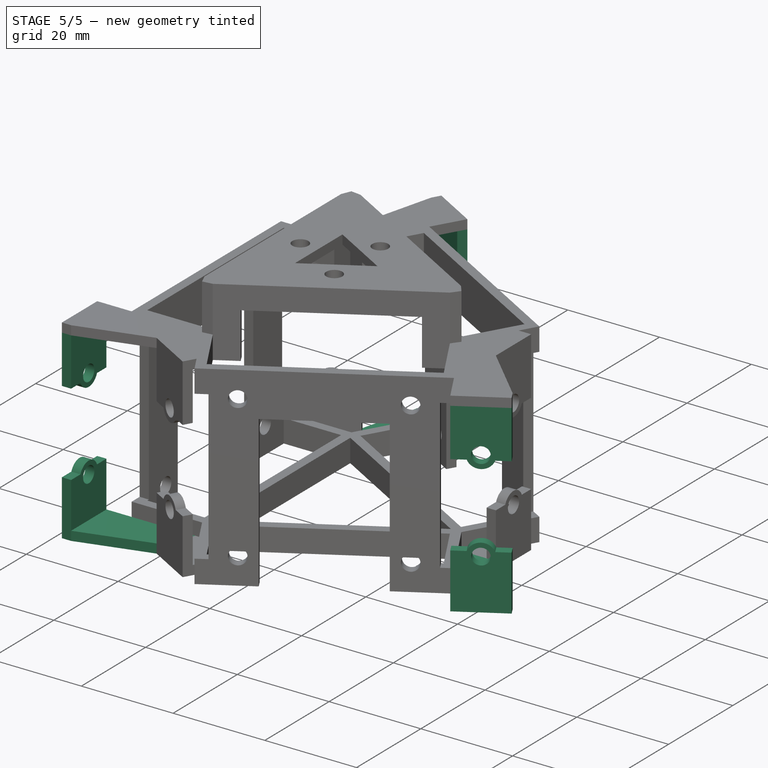
[diagram: stage 5 of 5 — iso view after this stage's code; geometry added in this stage tinted green]
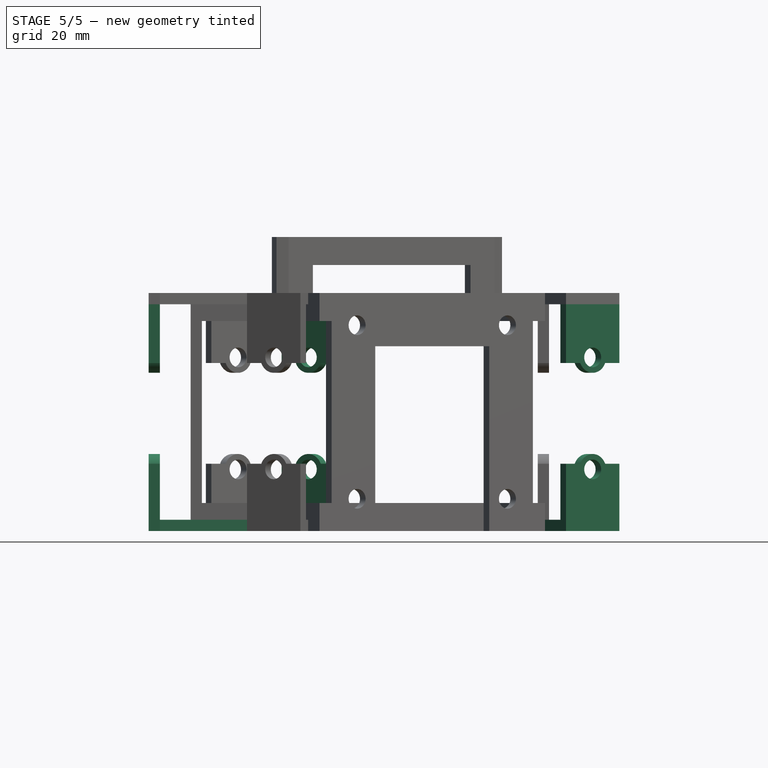
[diagram: stage 5 of 5 — front view after this stage's code; geometry added in this stage tinted green]
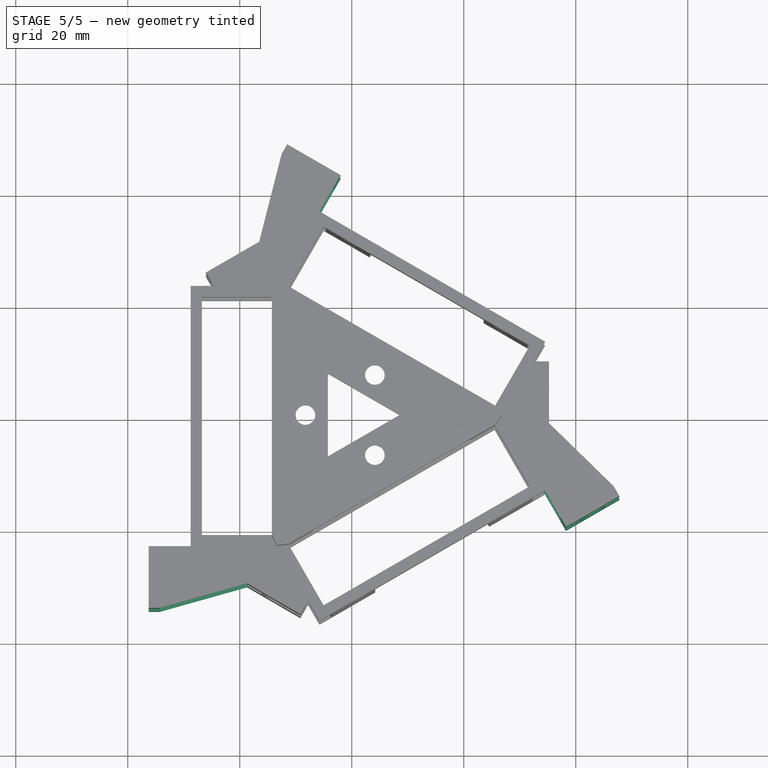
[diagram: stage 5 of 5 — top view after this stage's code; geometry added in this stage tinted green]
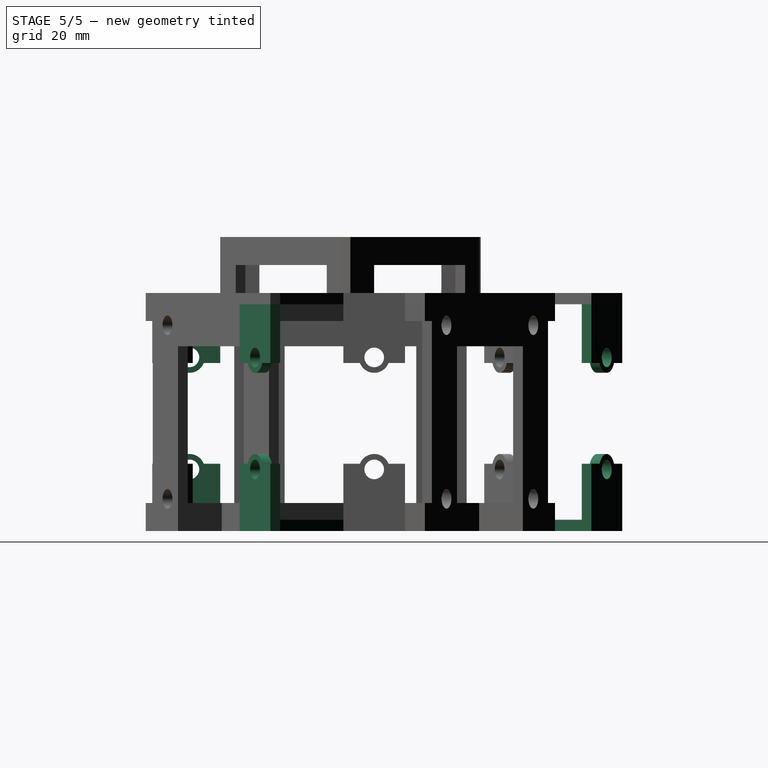
[diagram: stage 5 of 5 — right view after this stage's code; geometry added in this stage tinted green]
FEATURE [Sketcher::SketchObject] Sketch016
  ExternalGeometry = -> [Pad006]
  FullyConstrained = true
  MapMode = 5
  Placement = pos=(0,0,0) rot=(1,0,0;3.14159rad)
  Support = -> [Pad006]
  sketch-geometry (15):
    g0: LineSegment StartX=-36.2687 StartY=34.25 StartZ=0 EndX=-34.2687 EndY=34.25 EndZ=0
    g1: LineSegment StartX=-34.2687 StartY=34.25 StartZ=0 EndX=-18.6941 EndY=29.8792 EndZ=0
    g2: LineSegment StartX=-18.6941 StartY=29.8792 StartZ=0 EndX=-14.8668 EndY=23.25 EndZ=0
    g3: LineSegment StartX=-14.8668 StartY=23.25 StartZ=0 EndX=-36.2687 EndY=23.25 EndZ=0
    g4: LineSegment StartX=-36.2687 StartY=23.25 StartZ=0 EndX=-36.2687 EndY=34.25 EndZ=0
    g5: LineSegment StartX=47.7957 StartY=14.2846 StartZ=0 EndX=46.7957 EndY=12.5526 EndZ=0
    g6: LineSegment StartX=46.7957 StartY=12.5526 StartZ=0 EndX=35.2232 EndY=1.25 EndZ=0
    g7: LineSegment StartX=35.2232 StartY=1.25 StartZ=0 EndX=27.5685 EndY=1.25 EndZ=0
    g8: LineSegment StartX=27.5685 StartY=1.25 StartZ=0 EndX=38.2694 EndY=19.7846 EndZ=0
    g9: LineSegment StartX=38.2694 StartY=19.7846 StartZ=0 EndX=47.7957 EndY=14.2846 EndZ=0
    g10: LineSegment StartX=-2.00074 StartY=-43.0346 StartZ=0 EndX=-12.7017 EndY=-24.5 EndZ=0
    g11: LineSegment StartX=-12.7017 StartY=-24.5 StartZ=0 EndX=-16.5291 EndY=-31.1292 EndZ=0
    g12: LineSegment StartX=-16.5291 StartY=-31.1292 StartZ=0 EndX=-12.527 EndY=-46.8026 EndZ=0
    g13: LineSegment StartX=-12.527 StartY=-46.8026 StartZ=0 EndX=-11.527 EndY=-48.5346 EndZ=0
    g14: LineSegment StartX=-11.527 StartY=-48.5346 StartZ=0 EndX=-2.00074 EndY=-43.0346 EndZ=0
  constraints (30):
    c: Coincident(g-3,g0)
    c: Coincident(g0,g-3)
    c: Coincident(g0,g1)
    c: Coincident(g1,g-6)
    c: Coincident(g1,g2)
    c: Coincident(g2,g-5)
    c: Coincident(g2,g3)
    c: Coincident(g3,g-4)
    c: Coincident(g3,g4)
    c: Coincident(g4,g0)
    c: Coincident(g-14,g5)
    c: Coincident(g5,g-14)
    c: Coincident(g5,g6)
    c: Coincident(g6,g-9)
    c: Coincident(g6,g7)
    c: Coincident(g7,g-8)
    c: Coincident(g7,g8)
    c: Coincident(g8,g-7)
    c: Coincident(g8,g9)
    c: Coincident(g9,g5)
    c: Coincident(g-10,g10)
    c: Coincident(g10,g-11)
    c: Coincident(g10,g11)
    c: Coincident(g11,g-12)
    c: Coincident(g11,g12)
    c: Coincident(g12,g-13)
    c: Coincident(g12,g13)
    c: Coincident(g13,g-13)
    c: Coincident(g13,g14)
    c: Coincident(g14,g10)
FEATURE [PartDesign::Pad] Pad007
  BaseFeature = -> Pad006
  Direction = (0,0,-1)
  Length = 2
  Length2 = 10
  Profile = -> Sketch016
  ReferenceAxis = -> Sketch016 [N_Axis]
  Reversed = true
  Type = 0
FEATURE [Sketcher::SketchObject] Sketch017
  ExternalGeometry = -> [Pad007]
  FullyConstrained = false
  MapMode = 5
  Placement = pos=(-36.2687,0,0) rot=(0.57735,-0.57735,-0.57735;2.0944rad)
  Support = -> [Pad007]
  sketch-geometry (15):
    g0: LineSegment StartX=23.25 StartY=42.5 StartZ=0 EndX=34.25 EndY=42.5 EndZ=0
    g1: LineSegment StartX=34.25 StartY=42.5 StartZ=0 EndX=34.25 EndY=30 EndZ=0
    g2: LineSegment StartX=34.25 StartY=30 StartZ=0 EndX=31.3117 EndY=30 EndZ=0
    g3: LineSegment StartX=23.25 StartY=30 StartZ=0 EndX=23.25 EndY=42.5 EndZ=0
    g4: LineSegment StartX=23.25 StartY=0 StartZ=0 EndX=34.25 EndY=0 EndZ=0
    g5: LineSegment StartX=34.25 StartY=0 StartZ=0 EndX=34.25 EndY=12 EndZ=0
    g6: LineSegment StartX=34.25 StartY=12 StartZ=0 EndX=31.3117 EndY=12 EndZ=0
    g7: LineSegment StartX=23.25 StartY=12 StartZ=0 EndX=23.25 EndY=0 EndZ=0
    g8: LineSegment StartX=28.75 StartY=42.5 StartZ=0 EndX=28.75 EndY=0 EndZ=0
    g9: Circle CenterX=28.75 CenterY=31 CenterZ=0 NormalX=0 NormalY=0 NormalZ=1 AngleXU=0 Radius=1.75
    g10: ArcOfCircle CenterX=28.75 CenterY=31 CenterZ=0 NormalX=0 NormalY=0 NormalZ=1 AngleXU=0 Radius=2.75 StartAngle=3.51376 EndAngle=5.91102
    g11: Circle CenterX=28.75 CenterY=11 CenterZ=0 NormalX=0 NormalY=0 NormalZ=1 AngleXU=0 Radius=1.75
    g12: ArcOfCircle CenterX=28.75 CenterY=11 CenterZ=0 NormalX=0 NormalY=0 NormalZ=1 AngleXU=0 Radius=2.75 StartAngle=0.372169 EndAngle=2.76942
    g13: LineSegment StartX=26.1883 StartY=30 StartZ=0 EndX=23.25 EndY=30 EndZ=0
    g14: LineSegment StartX=26.1883 StartY=12 StartZ=0 EndX=23.25 EndY=12 EndZ=0
  constraints (44):
    c: Coincident(g0,g1)
    c: Coincident(g1,g2)
    c: Coincident(g13,g3)
    c: Coincident(g3,g0)
    c: Horizontal(g0)
    c: Horizontal(g2)
    c: Vertical(g1)
    c: Vertical(g3)
    c: Coincident(g0,g-3)
    c: Coincident(g4,g5)
    c: Coincident(g5,g6)
    c: Coincident(g14,g7)
    c: Coincident(g7,g4)
    c: Horizontal(g4)
    c: Horizontal(g6)
    c: Vertical(g5)
    c: Vertical(g7)
    c: Coincident(g4,g-5)
    c: PointOnObject(g-4,g1)
    c: PointOnObject(g-6,g5)
    c: PointOnObject(g8,g0)
    c: PointOnObject(g8,g4)
    c: Vertical(g8)
    c: Distance(g0,g8) = 5.5
    c: PointOnObject(g9,g8)
    c: Coincident(g10,g9)
    c: PointOnObject(g11,g8)
    c: Coincident(g12,g11)
    c: Diameter(g9) = 3.5
    c: Diameter(g11) = 3.5
    c: Diameter(g10) = 5.5
    c: Diameter(g12) = 5.5
    c: Distance(g9,g2) = 1
    c: Distance(g11,g6) = 1
    c: Distance(g9,g0) = 11.5
    c: Distance(g9,g11) = 20
    c: PointOnObject(g10,g2)
    c: Coincident(g2,g10)
    c: PointOnObject(g13,g10)
    c: PointOnObject(g12,g6)
    c: Coincident(g6,g12)
    c: PointOnObject(g14,g12)
    c: Equal(g1,g3)
    c: Equal(g5,g7)
FEATURE [PartDesign::Pad] Pad008
  BaseFeature = -> Pad007
  Direction = (-1,0,0)
  Length = 2
  Length2 = 10
  Profile = -> Sketch017
  ReferenceAxis = -> Sketch017 [N_Axis]
  Reversed = true
  Type = 0
FEATURE [Sketcher::SketchObject] Sketch018
  ExternalGeometry = -> [Pad008]
  FullyConstrained = true
  MapMode = 5
  Placement = pos=(18.1343,31.4096,0) rot=(0.186157,0.694747,0.694747;2.77349rad)
  Support = -> [Pad008]
  sketch-geometry (15):
    g0: LineSegment StartX=23.25 StartY=42.5 StartZ=0 EndX=34.25 EndY=42.5 EndZ=0
    g1: LineSegment StartX=34.25 StartY=42.5 StartZ=0 EndX=34.25 EndY=30 EndZ=0
    g2: LineSegment StartX=34.25 StartY=30 StartZ=0 EndX=31.3117 EndY=30 EndZ=0
    g3: LineSegment StartX=23.25 StartY=30 StartZ=0 EndX=23.25 EndY=42.5 EndZ=0
    g4: LineSegment StartX=23.25 StartY=0 StartZ=0 EndX=34.25 EndY=0 EndZ=0
    g5: LineSegment StartX=34.25 StartY=0 StartZ=0 EndX=34.25 EndY=12 EndZ=0
    g6: LineSegment StartX=34.25 StartY=12 StartZ=0 EndX=31.3117 EndY=12 EndZ=0
    g7: LineSegment StartX=23.25 StartY=12 StartZ=0 EndX=23.25 EndY=0 EndZ=0
    g8: LineSegment StartX=28.75 StartY=42.5 StartZ=0 EndX=28.75 EndY=0 EndZ=0
    g9: Circle CenterX=28.75 CenterY=31 CenterZ=0 NormalX=0 NormalY=0 NormalZ=1 AngleXU=0 Radius=1.75
    g10: ArcOfCircle CenterX=28.75 CenterY=31 CenterZ=0 NormalX=0 NormalY=0 NormalZ=1 AngleXU=0 Radius=2.75 StartAngle=3.51376 EndAngle=5.91102
    g11: Circle CenterX=28.75 CenterY=11 CenterZ=0 NormalX=0 NormalY=0 NormalZ=1 AngleXU=0 Radius=1.75
    g12: ArcOfCircle CenterX=28.75 CenterY=11 CenterZ=0 NormalX=0 NormalY=0 NormalZ=1 AngleXU=0 Radius=2.75 StartAngle=0.372169 EndAngle=2.76942
    g13: LineSegment StartX=26.1883 StartY=30 StartZ=0 EndX=23.25 EndY=30 EndZ=0
    g14: LineSegment StartX=26.1883 StartY=12 StartZ=0 EndX=23.25 EndY=12 EndZ=0
  constraints (46):
    c: Coincident(g0,g1)
    c: Coincident(g1,g2)
    c: Coincident(g13,g3)
    c: Coincident(g3,g0)
    c: Horizontal(g0)
    c: Horizontal(g2)
    c: Vertical(g1)
    c: Vertical(g3)
    c: Coincident(g0,g-3)
    c: Coincident(g4,g5)
    c: Coincident(g5,g6)
    c: Coincident(g14,g7)
    c: Coincident(g7,g4)
    c: Horizontal(g4)
    c: Horizontal(g6)
    c: Vertical(g5)
    c: Vertical(g7)
    c: Coincident(g4,g-5)
    c: PointOnObject(g-4,g1)
    c: PointOnObject(g-6,g5)
    c: PointOnObject(g8,g0)
    c: PointOnObject(g8,g4)
    c: Vertical(g8)
    c: Distance(g0,g8) = 5.5
    c: PointOnObject(g9,g8)
    c: Coincident(g10,g9)
    c: PointOnObject(g11,g8)
    c: Coincident(g12,g11)
    c: Diameter(g9) = 3.5
    c: Diameter(g11) = 3.5
    c: Diameter(g12) = 5.5
    c: Diameter(g10) = 5.5
    c: Distance(g9,g2) = 1
    c: Distance(g11,g6) = 1
    c: Distance(g9,g0) = 11.5
    c: Distance(g9,g11) = 20
    c: PointOnObject(g10,g2)
    c: Coincident(g2,g10)
    c: PointOnObject(g13,g10)
    c: PointOnObject(g12,g6)
    c: Coincident(g6,g12)
    c: PointOnObject(g14,g12)
    c: Equal(g1,g3)
    c: Equal(g5,g7)
    c: Perpendicular(g3,g13)
    c: Perpendicular(g7,g14)
FEATURE [PartDesign::Pad] Pad009
  BaseFeature = -> Pad008
  Direction = (0.5,0.866025,0)
  Length = 2
  Length2 = 10
  Profile = -> Sketch018
  ReferenceAxis = -> Sketch018 [N_Axis]
  Reversed = true
  Type = 0
FEATURE [Sketcher::SketchObject] Sketch019
  ExternalGeometry = -> [Pad009]
  FullyConstrained = true
  MapMode = 5
  Placement = pos=(18.1343,-31.4096,0) rot=(0.935113,0.250563,0.250563;1.63783rad)
  Support = -> [Pad009]
  sketch-geometry (15):
    g0: LineSegment StartX=23.25 StartY=42.5 StartZ=0 EndX=34.25 EndY=42.5 EndZ=0
    g1: LineSegment StartX=34.25 StartY=42.5 StartZ=0 EndX=34.25 EndY=30 EndZ=0
    g2: LineSegment StartX=34.25 StartY=30 StartZ=0 EndX=31.3117 EndY=30 EndZ=0
    g3: LineSegment StartX=23.25 StartY=30 StartZ=0 EndX=23.25 EndY=42.5 EndZ=0
    g4: LineSegment StartX=23.25 StartY=0 StartZ=0 EndX=34.25 EndY=0 EndZ=0
    g5: LineSegment StartX=34.25 StartY=0 StartZ=0 EndX=34.25 EndY=12 EndZ=0
    g6: LineSegment StartX=34.25 StartY=12 StartZ=0 EndX=31.3117 EndY=12 EndZ=0
    g7: LineSegment StartX=23.25 StartY=12 StartZ=0 EndX=23.25 EndY=0 EndZ=0
    g8: LineSegment StartX=28.75 StartY=42.5 StartZ=0 EndX=28.75 EndY=0 EndZ=0
    g9: Circle CenterX=28.75 CenterY=31 CenterZ=0 NormalX=0 NormalY=0 NormalZ=1 AngleXU=0 Radius=1.75
    g10: ArcOfCircle CenterX=28.75 CenterY=31 CenterZ=0 NormalX=0 NormalY=0 NormalZ=1 AngleXU=0 Radius=2.75 StartAngle=3.51376 EndAngle=5.91102
    g11: Circle CenterX=28.75 CenterY=11 CenterZ=0 NormalX=0 NormalY=0 NormalZ=1 AngleXU=0 Radius=1.75
    g12: ArcOfCircle CenterX=28.75 CenterY=11 CenterZ=0 NormalX=0 NormalY=0 NormalZ=1 AngleXU=0 Radius=2.75 StartAngle=0.372169 EndAngle=2.76942
    g13: LineSegment StartX=26.1883 StartY=30 StartZ=0 EndX=23.25 EndY=30 EndZ=0
    g14: LineSegment StartX=26.1883 StartY=12 StartZ=0 EndX=23.25 EndY=12 EndZ=0
  constraints (46):
    c: Coincident(g0,g1)
    c: Coincident(g1,g2)
    c: Coincident(g13,g3)
    c: Coincident(g3,g0)
    c: Horizontal(g0)
    c: Horizontal(g2)
    c: Vertical(g1)
    c: Vertical(g3)
    c: Coincident(g0,g-3)
    c: Coincident(g4,g5)
    c: Coincident(g5,g6)
    c: Coincident(g14,g7)
    c: Coincident(g7,g4)
    c: Horizontal(g4)
    c: Horizontal(g6)
    c: Vertical(g5)
    c: Vertical(g7)
    c: Coincident(g4,g-5)
    c: PointOnObject(g-4,g1)
    c: PointOnObject(g-6,g5)
    c: PointOnObject(g8,g0)
    c: PointOnObject(g8,g4)
    c: Vertical(g8)
    c: Distance(g0,g8) = 5.5
    c: PointOnObject(g9,g8)
    c: Coincident(g10,g9)
    c: PointOnObject(g11,g8)
    c: Coincident(g12,g11)
    c: Diameter(g9) = 3.5
    c: Diameter(g11) = 3.5
    c: Diameter(g10) = 5.5
    c: Diameter(g12) = 5.5
    c: Distance(g9,g0) = 11.5
    c: Distance(g9,g11) = 20
    c: Distance(g9,g2) = 1
    c: Distance(g11,g6) = 1
    c: PointOnObject(g10,g2)
    c: Coincident(g2,g10)
    c: PointOnObject(g13,g10)
    c: PointOnObject(g12,g6)
    c: Coincident(g6,g12)
    c: PointOnObject(g14,g12)
    c: Equal(g1,g3)
    c: Equal(g5,g7)
    c: Perpendicular(g13,g3)
    c: Perpendicular(g14,g7)
FEATURE [PartDesign::Pad] Pad010
  BaseFeature = -> Pad009
  Direction = (0.5,-0.866025,0)
  Length = 2
  Length2 = 10
  Profile = -> Sketch019
  ReferenceAxis = -> Sketch019 [N_Axis]
  Reversed = true
  Type = 0
FEATURE [PartDesign::Body] Body
  Group = -> [Sketch,Pad,Sketch001,Pad001,Sketch002,Pad002,Sketch003,Pocket,Sketch004,Pocket001,Sketch005,Pocket002,Sketch006,Pocket003,Sketch007,Pocket004,Sketch008,Pocket005,Sketch009,Pad003,Sketch010,Pad004,Sketch011,Pad005,Sketch012,Pocket006,Sketch013,Pocket007,Sketch014,Pocket008,Sketch015,Pad006,Sketch016,Pad007,Sketch017,Pad008,Sketch018,Pad009,Sketch019,Pad010]
  Origin = -> Origin
  Tip = -> Pad010
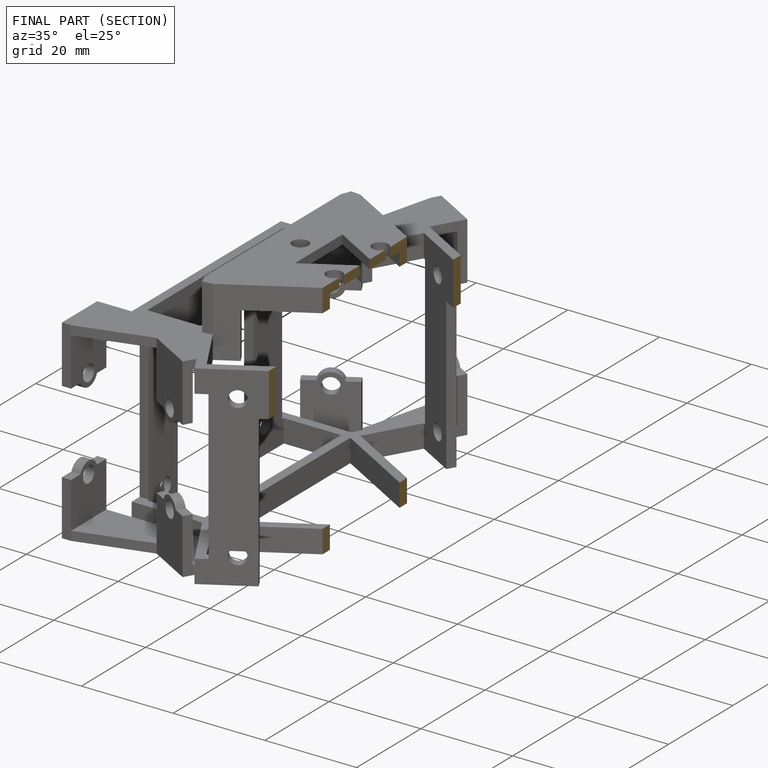
[diagram: finished part — half-section view (interior)]
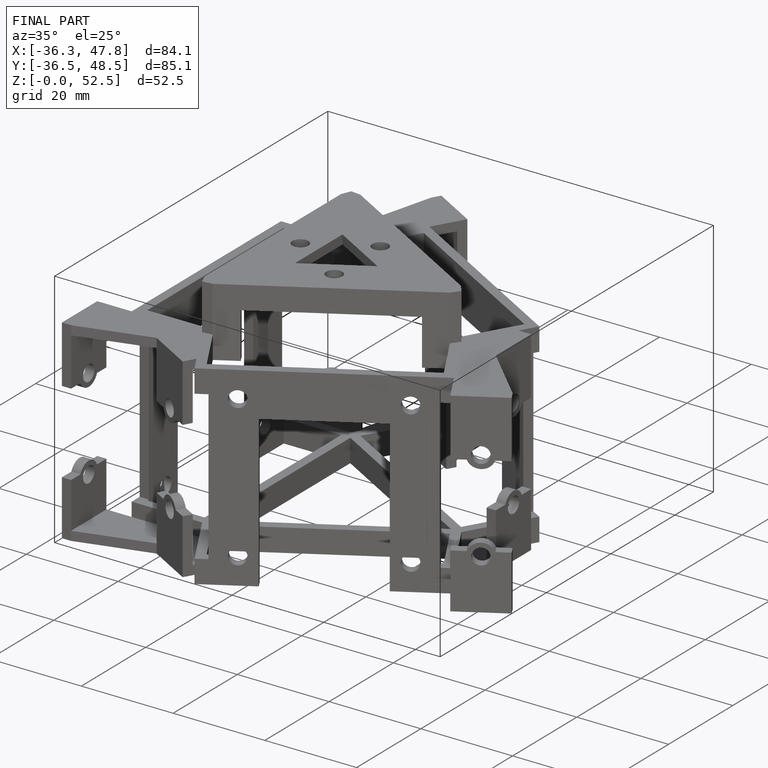
[diagram: finished part — iso view with bounding-box wireframe]
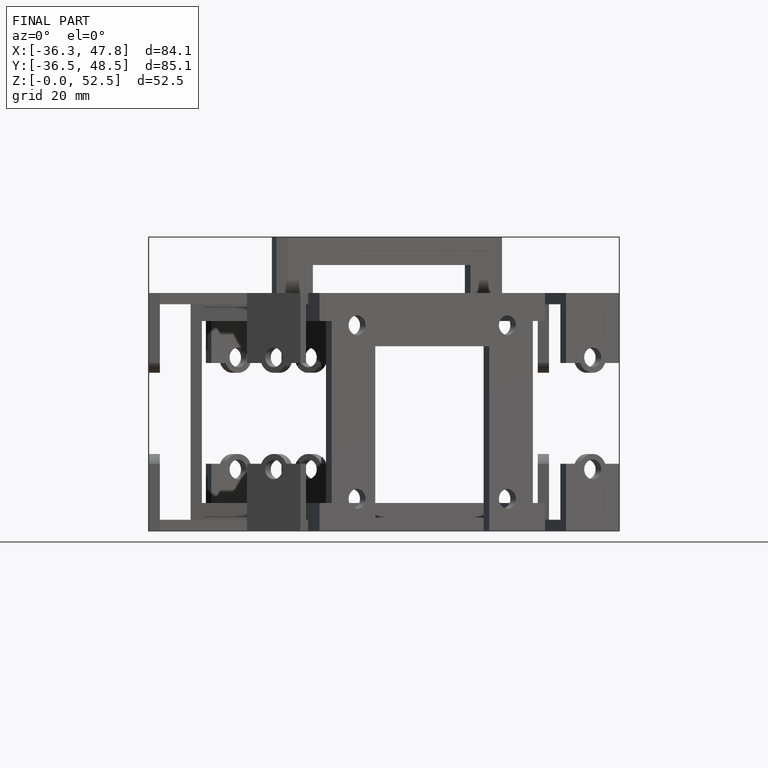
[diagram: finished part — front view with bounding-box wireframe]
